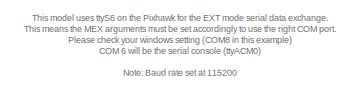
[diagram: root canvas - part 1/2, top left region]
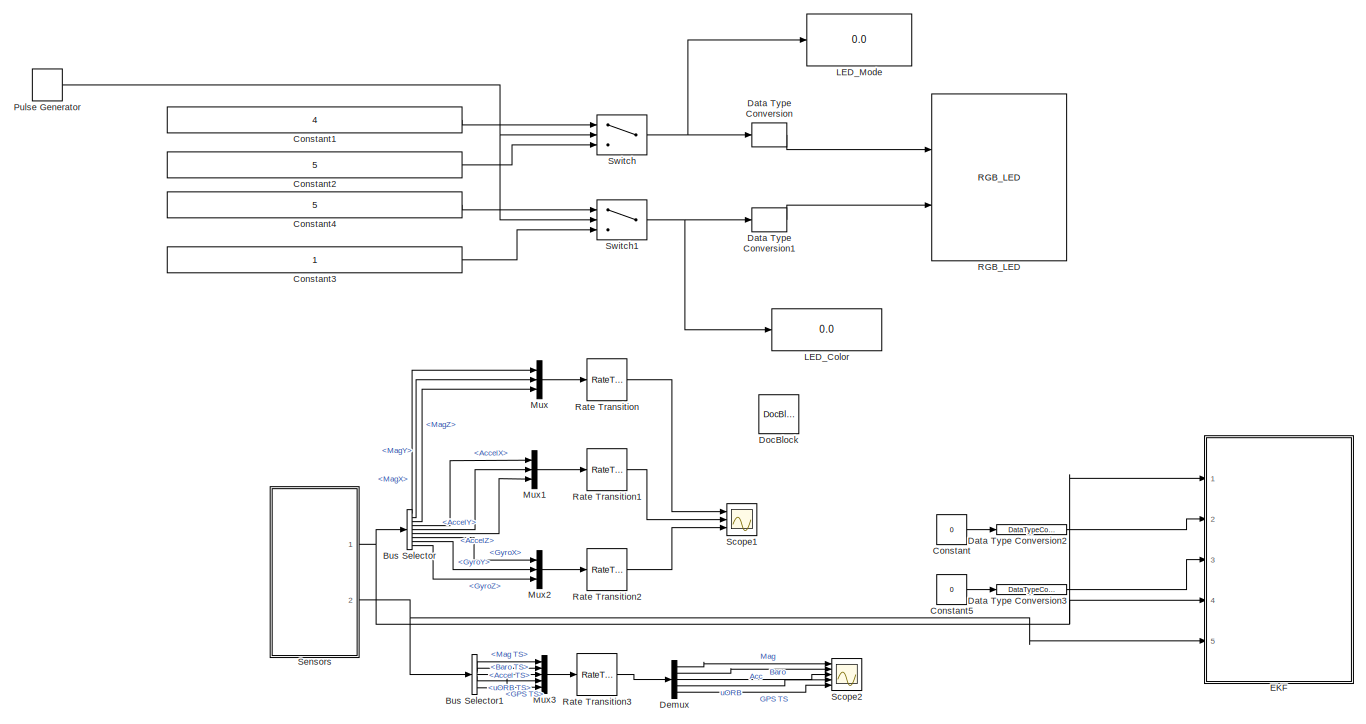
[diagram: root canvas - part 2/2, full width, middle band]
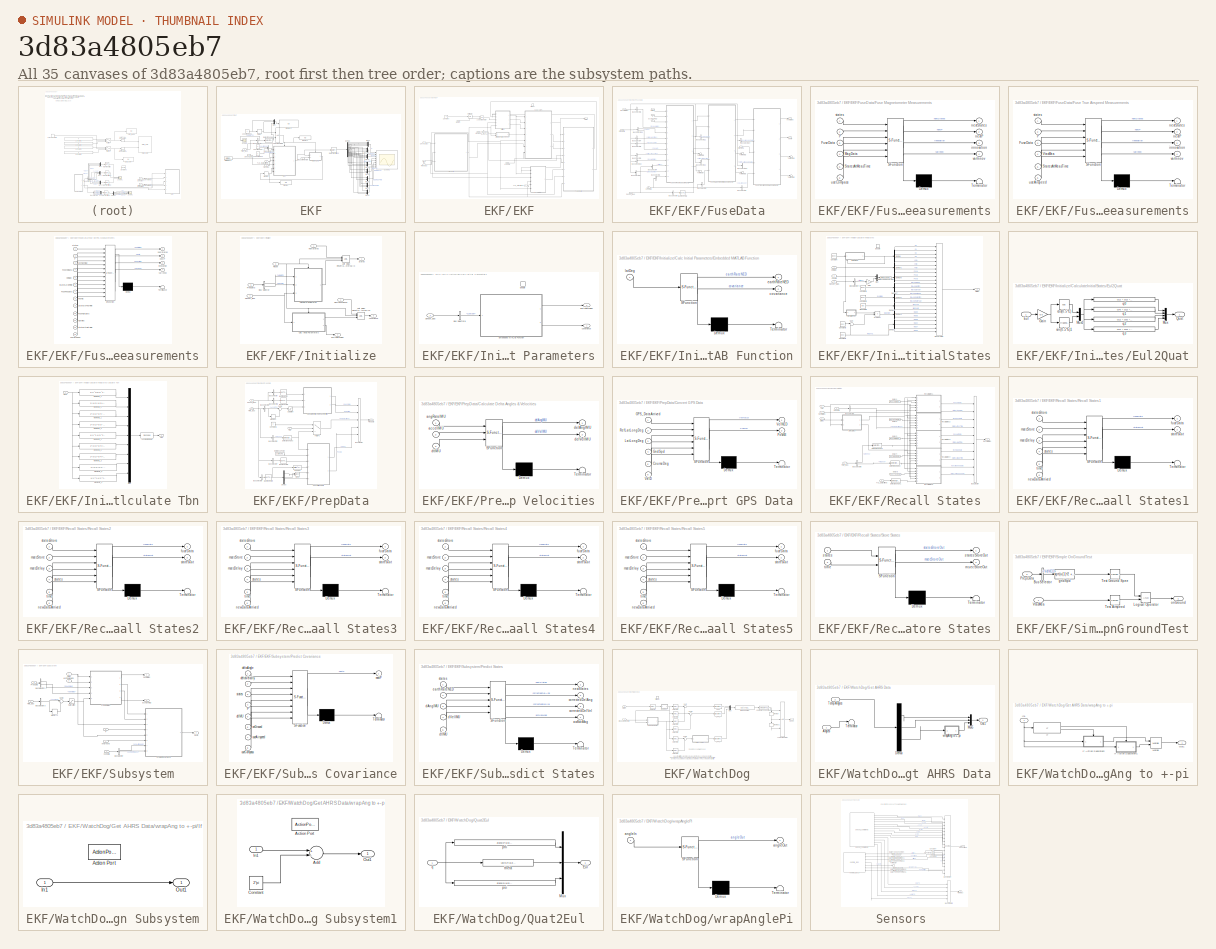
[diagram: thumbnail index - all 35 canvases of the model, root first then tree order]
MODEL slx_3d83a4805eb7
KIND model
CONFIG AbsTol = auto
CONFIG EnableMultiTasking = on
CONFIG FixedStep = 1/100
CONFIG InitFcn = GainTune = 1;\nalignTime = floor(398.001 * Ts);\nEAS2TAS = 1;\nLatDegInit = 1;\nLngDegInit = 1;\nmsecVelDelay = 300;\nmsecPosDelay = 300;\nmsecHgtDelay = 420;\nmsecMagDelay = 30;\nmsecTasDelay = 200;
CONFIG MaxStep = auto
CONFIG MinStep = auto
CONFIG RelTol = 1e-3
CONFIG SampleTimeConstraint = Unconstrained
CONFIG Solver = FixedStepDiscrete
CONFIG SolverName = FixedStepDiscrete
CONFIG StartTime = 0.0
CONFIG StopTime = inf
BLOCK [BusSelector] Bus Selector
  OutputAsBus = off
  OutputSignals = MagX,MagY,MagZ,AccelX,AccelY,AccelZ,GyroX,GyroY,GyroZ
  Ports = [1, 9]
BLOCK [BusSelector] Bus Selector1
  OutputAsBus = off
  OutputSignals = Mag TS,Accel TS,Baro TS,uORB TS,GPS TS
  Ports = [1, 5]
BLOCK [Constant] Constant
  SampleTime = -1
  Value = 0
BLOCK [Constant] Constant1
  OutDataTypeStr = int8
  Value = 4
BLOCK [Constant] Constant2
  OutDataTypeStr = int8
  Value = 5
BLOCK [Constant] Constant3
  OutDataTypeStr = int8
BLOCK [Constant] Constant4
  OutDataTypeStr = int8
  Value = 5
BLOCK [Constant] Constant5
  SampleTime = -1
  Value = 0
BLOCK [DataTypeConversion] Data Type Conversion
  OutDataTypeStr = Enum: RGBLED_MODE_ENUM
  RndMeth = Floor
  SaturateOnIntegerOverflow = off
BLOCK [DataTypeConversion] Data Type Conversion1
  OutDataTypeStr = Enum: RGBLED_COLOR_ENUM
  RndMeth = Floor
  SaturateOnIntegerOverflow = off
BLOCK [DataTypeConversion] Data Type Conversion2
  OutDataTypeStr = single
  RndMeth = Floor
  SaturateOnIntegerOverflow = off
BLOCK [DataTypeConversion] Data Type Conversion3
  OutDataTypeStr = single
  RndMeth = Floor
  SaturateOnIntegerOverflow = off
BLOCK [Demux] Demux
  DisplayOption = bar
  Outputs = 5
  Ports = [1, 5]
BLOCK [Reference] DocBlock  REF=simulink/Model-Wide
Utilities/DocBlock
  Ports = []
  SourceBlock = simulink/Model-Wide\nUtilities/DocBlock
  SourceProductBaseCode = SL
  SourceProductName = Simulink
  SourceType = DocBlock
  UserDataPersistent = on
BLOCK [SubSystem] EKF
  Ports = [5]
  RequestExecContextInheritance = off
  Variant = off
BLOCK [BusCreator] EKF/Bus Creator
  DisplayOption = bar
  InheritFromInputs = on
  Inputs = 2
  Ports = [2, 1]
BLOCK [BusSelector] EKF/Bus Selector
  OutputAsBus = off
  OutputSignals = uORB TS
  Ports = [1, 1]
BLOCK [Delay] EKF/Delay
  DelayLength = alignTime
  InitialCondition = 0
  InputPortMap = u0
  Ports = [1, 1]
BLOCK [Demux] EKF/Demux
  DisplayOption = bar
  Outputs = 24
  Ports = [1, 24]
BLOCK [Reference] EKF/Detect Change1  REF=simulink/Logic and Bit
Operations/Detect
Change
  Ports = [1, 1]
  SourceBlock = simulink/Logic and Bit\nOperations/Detect\nChange
  SourceProductBaseCode = SL
  SourceProductName = Simulink
  SourceType = Detect Change
BLOCK [DigitalClock] EKF/Digital Clock
  SampleTime = -1
BLOCK [Display] EKF/Display
  Decimation = 1
  Ports = [1]
BLOCK [Display] EKF/Display1
  Decimation = 1
  Ports = [1]
BLOCK [Display] EKF/Display2
  Decimation = 1
  Ports = [1]
BLOCK [SubSystem] EKF/EKF
  Ports = [7, 1, 0, 1]
  RequestExecContextInheritance = off
  Variant = off
BLOCK [Constant] EKF/EKF/Constant
  OutDataTypeStr = boolean
  SampleTime = -1
  Value = 0
BLOCK [Gain] EKF/EKF/EAS2TAS
  Gain = EAS2TAS
  OutDataTypeStr = Inherit: Inherit via internal rule
  ParamDataTypeStr = Inherit: Inherit via internal rule
  SaturateOnIntegerOverflow = off
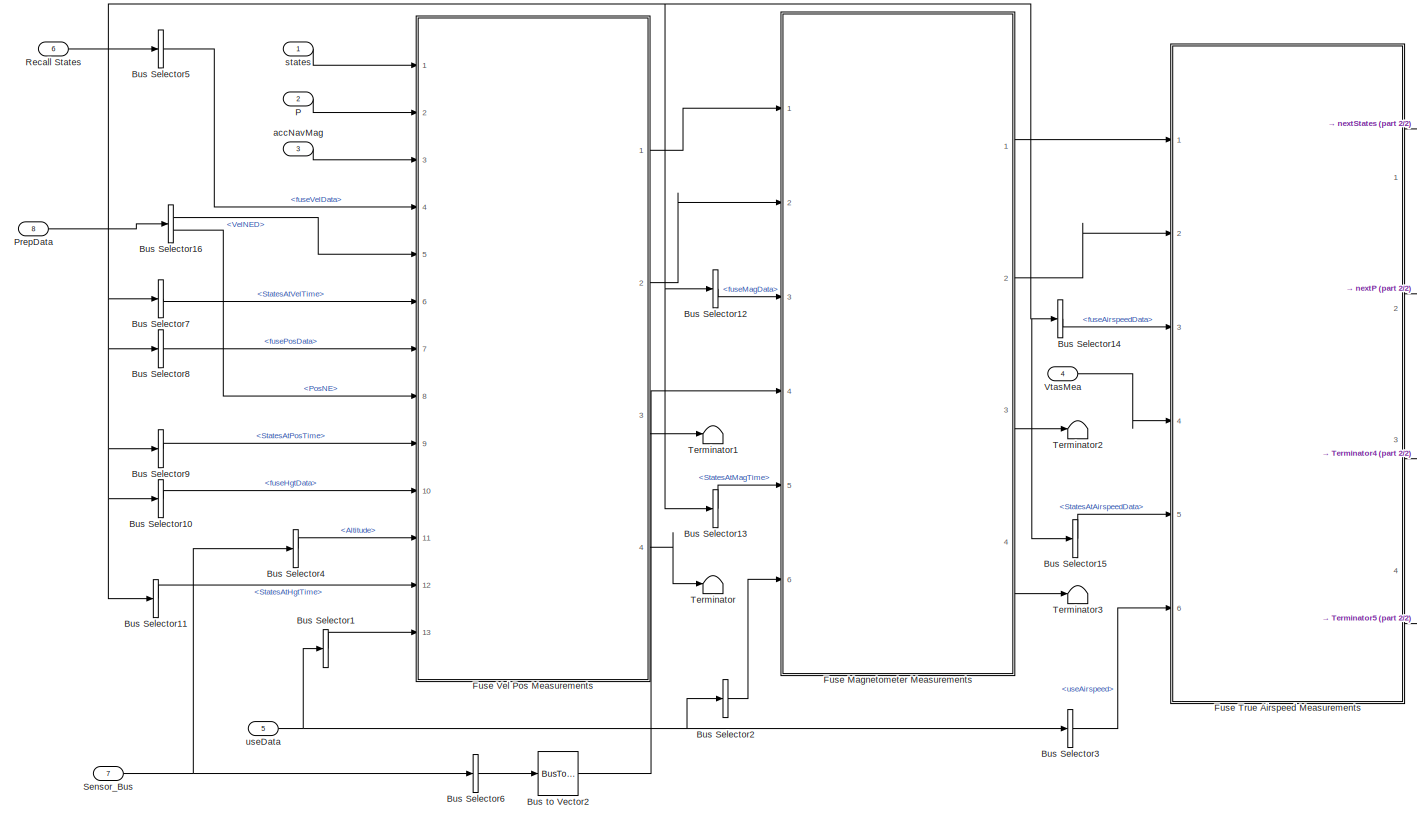
[diagram: EKF/EKF/FuseData - part 1/2, most of the canvas]
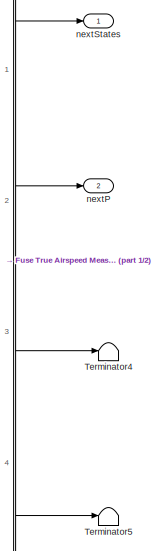
[diagram: EKF/EKF/FuseData - part 2/2, middle right region]
BLOCK [SubSystem] EKF/EKF/FuseData
  Ports = [8, 2]
  RequestExecContextInheritance = off
  Variant = off
BLOCK [BusSelector] EKF/EKF/FuseData/Bus Selector1
  OutputAsBus = on
  OutputSignals = useAirspeed
  Ports = [1, 1]
BLOCK [BusSelector] EKF/EKF/FuseData/Bus Selector10
  OutputAsBus = off
  OutputSignals = fuseHgtData
  Ports = [1, 1]
BLOCK [BusSelector] EKF/EKF/FuseData/Bus Selector11
  OutputAsBus = off
  OutputSignals = StatesAtHgtTime
  Ports = [1, 1]
BLOCK [BusSelector] EKF/EKF/FuseData/Bus Selector12
  OutputAsBus = off
  OutputSignals = fuseMagData
  Ports = [1, 1]
BLOCK [BusSelector] EKF/EKF/FuseData/Bus Selector13
  OutputAsBus = off
  OutputSignals = StatesAtMagTime
  Ports = [1, 1]
BLOCK [BusSelector] EKF/EKF/FuseData/Bus Selector14
  OutputAsBus = off
  OutputSignals = fuseAirspeedData
  Ports = [1, 1]
BLOCK [BusSelector] EKF/EKF/FuseData/Bus Selector15
  OutputAsBus = off
  OutputSignals = StatesAtAirspeedData
  Ports = [1, 1]
BLOCK [BusSelector] EKF/EKF/FuseData/Bus Selector16
  OutputAsBus = off
  OutputSignals = VelNED,PosNE
  Ports = [1, 2]
BLOCK [BusSelector] EKF/EKF/FuseData/Bus Selector2
  OutputAsBus = on
  OutputSignals = useCompass
  Ports = [1, 1]
BLOCK [BusSelector] EKF/EKF/FuseData/Bus Selector3
  OutputAsBus = off
  OutputSignals = useAirspeed
  Ports = [1, 1]
BLOCK [BusSelector] EKF/EKF/FuseData/Bus Selector4
  OutputAsBus = off
  OutputSignals = Altitude
  Ports = [1, 1]
BLOCK [BusSelector] EKF/EKF/FuseData/Bus Selector5
  OutputAsBus = off
  OutputSignals = fuseVelData
  Ports = [1, 1]
BLOCK [BusSelector] EKF/EKF/FuseData/Bus Selector6
  OutputAsBus = on
  OutputSignals = MagX,MagY,MagZ
  Ports = [1, 1]
BLOCK [BusSelector] EKF/EKF/FuseData/Bus Selector7
  OutputAsBus = off
  OutputSignals = StatesAtVelTime
  Ports = [1, 1]
BLOCK [BusSelector] EKF/EKF/FuseData/Bus Selector8
  OutputAsBus = off
  OutputSignals = fusePosData
  Ports = [1, 1]
BLOCK [BusSelector] EKF/EKF/FuseData/Bus Selector9
  OutputAsBus = off
  OutputSignals = StatesAtPosTime
  Ports = [1, 1]
BLOCK [BusToVector] EKF/EKF/FuseData/Bus to Vector2
BLOCK [SubSystem] EKF/EKF/FuseData/Fuse Magnetometer Measurements
  ErrorFcn = Stateflow.Translate.translate
  PermitHierarchicalResolution = ExplicitOnly
  Ports = [6, 4]
  RequestExecContextInheritance = off
  SFBlockType = MATLAB Function
  TreatAsAtomicUnit = on
  Variant = off
BLOCK [Demux] EKF/EKF/FuseData/Fuse Magnetometer Measurements/ Demux 
  Outputs = 1
  Ports = [1, 1]
BLOCK [S-Function] EKF/EKF/FuseData/Fuse Magnetometer Measurements/ SFunction 
  EnableBusSupport = on
  FunctionName = sf_sfun
  PortCounts = [6 5]
  Ports = [6, 5]
  SFcnIsStateOwnerBlock = off
  SFunctionDeploymentMode = off
  Tag = Stateflow S-Function ext_mode_intro 9
BLOCK [Terminator] EKF/EKF/FuseData/Fuse Magnetometer Measurements/ Terminator 
BLOCK [Inport] EKF/EKF/FuseData/Fuse Magnetometer Measurements/FuseData
  IconDisplay = Port number
  Port = 3
BLOCK [Inport] EKF/EKF/FuseData/Fuse Magnetometer Measurements/MagData
  IconDisplay = Port number
  Port = 4
BLOCK [Inport] EKF/EKF/FuseData/Fuse Magnetometer Measurements/P
  IconDisplay = Port number
  Port = 2
BLOCK [Inport] EKF/EKF/FuseData/Fuse Magnetometer Measurements/StatesAtMeasTime
  IconDisplay = Port number
  Port = 5
BLOCK [Outport] EKF/EKF/FuseData/Fuse Magnetometer Measurements/innovation
  IconDisplay = Port number
  Port = 3
BLOCK [Outport] EKF/EKF/FuseData/Fuse Magnetometer Measurements/nextP
  IconDisplay = Port number
  Port = 2
BLOCK [Outport] EKF/EKF/FuseData/Fuse Magnetometer Measurements/nextStates
  IconDisplay = Port number
BLOCK [Inport] EKF/EKF/FuseData/Fuse Magnetometer Measurements/states
  IconDisplay = Port number
BLOCK [Inport] EKF/EKF/FuseData/Fuse Magnetometer Measurements/useCompass
  IconDisplay = Port number
  Port = 6
BLOCK [Outport] EKF/EKF/FuseData/Fuse Magnetometer Measurements/varInnov
  IconDisplay = Port number
  Port = 4
BLOCK [SubSystem] EKF/EKF/FuseData/Fuse True Airspeed Measurements
  ErrorFcn = Stateflow.Translate.translate
  PermitHierarchicalResolution = ExplicitOnly
  Ports = [6, 4]
  RequestExecContextInheritance = off
  SFBlockType = MATLAB Function
  TreatAsAtomicUnit = on
  Variant = off
BLOCK [Demux] EKF/EKF/FuseData/Fuse True Airspeed Measurements/ Demux 
  Outputs = 1
  Ports = [1, 1]
BLOCK [S-Function] EKF/EKF/FuseData/Fuse True Airspeed Measurements/ SFunction 
  EnableBusSupport = on
  FunctionName = sf_sfun
  PortCounts = [6 5]
  Ports = [6, 5]
  SFcnIsStateOwnerBlock = off
  SFunctionDeploymentMode = off
  Tag = Stateflow S-Function ext_mode_intro 4
BLOCK [Terminator] EKF/EKF/FuseData/Fuse True Airspeed Measurements/ Terminator 
BLOCK [Inport] EKF/EKF/FuseData/Fuse True Airspeed Measurements/FuseData
  IconDisplay = Port number
  Port = 3
BLOCK [Inport] EKF/EKF/FuseData/Fuse True Airspeed Measurements/P
  IconDisplay = Port number
  Port = 2
BLOCK [Inport] EKF/EKF/FuseData/Fuse True Airspeed Measurements/StatesAtMeasTime
  IconDisplay = Port number
  Port = 5
BLOCK [Inport] EKF/EKF/FuseData/Fuse True Airspeed Measurements/VtasMea
  IconDisplay = Port number
  Port = 4
BLOCK [Outport] EKF/EKF/FuseData/Fuse True Airspeed Measurements/innovation
  IconDisplay = Port number
  Port = 3
BLOCK [Outport] EKF/EKF/FuseData/Fuse True Airspeed Measurements/nextP
  IconDisplay = Port number
  Port = 2
BLOCK [Outport] EKF/EKF/FuseData/Fuse True Airspeed Measurements/nextStates
  IconDisplay = Port number
BLOCK [Inport] EKF/EKF/FuseData/Fuse True Airspeed Measurements/states
  IconDisplay = Port number
BLOCK [Inport] EKF/EKF/FuseData/Fuse True Airspeed Measurements/useAirspeed
  IconDisplay = Port number
  Port = 6
BLOCK [Outport] EKF/EKF/FuseData/Fuse True Airspeed Measurements/varInnov
  IconDisplay = Port number
  Port = 4
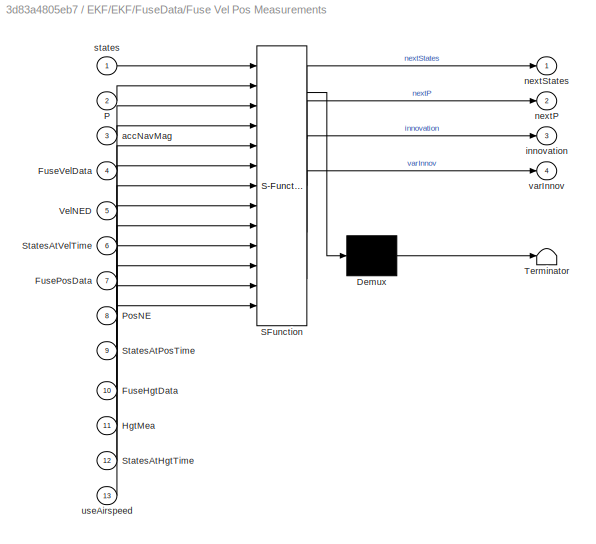
BLOCK [SubSystem] EKF/EKF/FuseData/Fuse Vel Pos Measurements
  ErrorFcn = Stateflow.Translate.translate
  PermitHierarchicalResolution = ExplicitOnly
  Ports = [13, 4]
  RequestExecContextInheritance = off
  SFBlockType = MATLAB Function
  TreatAsAtomicUnit = on
  Variant = off
BLOCK [Demux] EKF/EKF/FuseData/Fuse Vel Pos Measurements/ Demux 
  Outputs = 1
  Ports = [1, 1]
BLOCK [S-Function] EKF/EKF/FuseData/Fuse Vel Pos Measurements/ SFunction 
  EnableBusSupport = on
  FunctionName = sf_sfun
  PortCounts = [13 5]
  Ports = [13, 5]
  SFcnIsStateOwnerBlock = off
  SFunctionDeploymentMode = off
  Tag = Stateflow S-Function ext_mode_intro 19
BLOCK [Terminator] EKF/EKF/FuseData/Fuse Vel Pos Measurements/ Terminator 
BLOCK [Inport] EKF/EKF/FuseData/Fuse Vel Pos Measurements/FuseHgtData
  IconDisplay = Port number
  Port = 10
BLOCK [Inport] EKF/EKF/FuseData/Fuse Vel Pos Measurements/FusePosData
  IconDisplay = Port number
  Port = 7
BLOCK [Inport] EKF/EKF/FuseData/Fuse Vel Pos Measurements/FuseVelData
  IconDisplay = Port number
  Port = 4
BLOCK [Inport] EKF/EKF/FuseData/Fuse Vel Pos Measurements/HgtMea
  IconDisplay = Port number
  Port = 11
BLOCK [Inport] EKF/EKF/FuseData/Fuse Vel Pos Measurements/P
  IconDisplay = Port number
  Port = 2
BLOCK [Inport] EKF/EKF/FuseData/Fuse Vel Pos Measurements/PosNE
  IconDisplay = Port number
  Port = 8
BLOCK [Inport] EKF/EKF/FuseData/Fuse Vel Pos Measurements/StatesAtHgtTime
  IconDisplay = Port number
  Port = 12
BLOCK [Inport] EKF/EKF/FuseData/Fuse Vel Pos Measurements/StatesAtPosTime
  IconDisplay = Port number
  Port = 9
BLOCK [Inport] EKF/EKF/FuseData/Fuse Vel Pos Measurements/StatesAtVelTime
  IconDisplay = Port number
  Port = 6
BLOCK [Inport] EKF/EKF/FuseData/Fuse Vel Pos Measurements/VelNED
  IconDisplay = Port number
  Port = 5
BLOCK [Inport] EKF/EKF/FuseData/Fuse Vel Pos Measurements/accNavMag
  IconDisplay = Port number
  Port = 3
BLOCK [Outport] EKF/EKF/FuseData/Fuse Vel Pos Measurements/innovation
  IconDisplay = Port number
  Port = 3
BLOCK [Outport] EKF/EKF/FuseData/Fuse Vel Pos Measurements/nextP
  IconDisplay = Port number
  Port = 2
BLOCK [Outport] EKF/EKF/FuseData/Fuse Vel Pos Measurements/nextStates
  IconDisplay = Port number
BLOCK [Inport] EKF/EKF/FuseData/Fuse Vel Pos Measurements/states
  IconDisplay = Port number
BLOCK [Inport] EKF/EKF/FuseData/Fuse Vel Pos Measurements/useAirspeed
  IconDisplay = Port number
  Port = 13
BLOCK [Outport] EKF/EKF/FuseData/Fuse Vel Pos Measurements/varInnov
  IconDisplay = Port number
  Port = 4
BLOCK [Inport] EKF/EKF/FuseData/P
  IconDisplay = Port number
  Port = 2
BLOCK [Inport] EKF/EKF/FuseData/PrepData
  IconDisplay = Port number
  Port = 8
BLOCK [Inport] EKF/EKF/FuseData/Recall States
  IconDisplay = Port number
  Port = 6
BLOCK [Inport] EKF/EKF/FuseData/Sensor_Bus
  IconDisplay = Port number
  Port = 7
BLOCK [Terminator] EKF/EKF/FuseData/Terminator
BLOCK [Terminator] EKF/EKF/FuseData/Terminator1
BLOCK [Terminator] EKF/EKF/FuseData/Terminator2
BLOCK [Terminator] EKF/EKF/FuseData/Terminator3
BLOCK [Terminator] EKF/EKF/FuseData/Terminator4
BLOCK [Terminator] EKF/EKF/FuseData/Terminator5
BLOCK [Inport] EKF/EKF/FuseData/VtasMea
  IconDisplay = Port number
  Port = 4
BLOCK [Inport] EKF/EKF/FuseData/accNavMag
  IconDisplay = Port number
  Port = 3
BLOCK [Outport] EKF/EKF/FuseData/nextP
  IconDisplay = Port number
  Port = 2
BLOCK [Outport] EKF/EKF/FuseData/nextStates
  IconDisplay = Port number
BLOCK [Inport] EKF/EKF/FuseData/states
  IconDisplay = Port number
BLOCK [Inport] EKF/EKF/FuseData/useData
  IconDisplay = Port number
  Port = 5
BLOCK [SubSystem] EKF/EKF/Initialize
  Ports = [5, 3]
  RequestExecContextInheritance = off
  Variant = off
BLOCK [BusSelector] EKF/EKF/Initialize/Bus Selector
  OutputAsBus = off
  OutputSignals = VelNED,PosNE
  Ports = [1, 2]
BLOCK [SubSystem] EKF/EKF/Initialize/Calc Initial Parameters
  Ports = [1, 2, 1]
  RequestExecContextInheritance = off
  Variant = off
BLOCK [BusSelector] EKF/EKF/Initialize/Calc Initial Parameters/Bus Selector8
  OutputAsBus = off
  OutputSignals = Latitude
  Ports = [1, 1]
BLOCK [SubSystem] EKF/EKF/Initialize/Calc Initial Parameters/Embedded MATLAB Function
  ErrorFcn = Stateflow.Translate.translate
  PermitHierarchicalResolution = ExplicitOnly
  Ports = [1, 2]
  RequestExecContextInheritance = off
  SFBlockType = MATLAB Function
  TreatAsAtomicUnit = on
  Variant = off
BLOCK [Demux] EKF/EKF/Initialize/Calc Initial Parameters/Embedded MATLAB Function/ Demux 
  Outputs = 1
  Ports = [1, 1]
BLOCK [S-Function] EKF/EKF/Initialize/Calc Initial Parameters/Embedded MATLAB Function/ SFunction 
  EnableBusSupport = on
  FunctionName = sf_sfun
  PortCounts = [1 3]
  Ports = [1, 3]
  SFcnIsStateOwnerBlock = off
  SFunctionDeploymentMode = off
  Tag = Stateflow S-Function ext_mode_intro 2
BLOCK [Terminator] EKF/EKF/Initialize/Calc Initial Parameters/Embedded MATLAB Function/ Terminator 
BLOCK [Outport] EKF/EKF/Initialize/Calc Initial Parameters/Embedded MATLAB Function/covariance
  IconDisplay = Port number
  Port = 2
BLOCK [Outport] EKF/EKF/Initialize/Calc Initial Parameters/Embedded MATLAB Function/earthRateNED
  IconDisplay = Port number
BLOCK [Inport] EKF/EKF/Initialize/Calc Initial Parameters/Embedded MATLAB Function/latDeg
  IconDisplay = Port number
BLOCK [EnablePort] EKF/EKF/Initialize/Calc Initial Parameters/Enable
  Ports = []
BLOCK [Inport] EKF/EKF/Initialize/Calc Initial Parameters/Sensor_Bus
  IconDisplay = Port number
BLOCK [Outport] EKF/EKF/Initialize/Calc Initial Parameters/covariance
  IconDisplay = Port number
BLOCK [Outport] EKF/EKF/Initialize/Calc Initial Parameters/earthRateNED
  IconDisplay = Port number
  Port = 2
  PortDimensions = 3
BLOCK [SubSystem] EKF/EKF/Initialize/CalculateInitialStates
  Ports = [3, 1, 1]
  RequestExecContextInheritance = off
  TreatAsAtomicUnit = on
  Variant = off
BLOCK [BusCreator] EKF/EKF/Initialize/CalculateInitialStates/Bus Creator
  DisplayOption = bar
  InheritFromInputs = on
  Inputs = 24
  Ports = [24, 1]
BLOCK [BusSelector] EKF/EKF/Initialize/CalculateInitialStates/Bus Selector4
  OutputAsBus = off
  OutputSignals = Altitude
  Ports = [1, 1]
BLOCK [Constant] EKF/EKF/Initialize/CalculateInitialStates/Constant
  OutDataTypeStr = single
  SampleTime = -1
  Value = [0 0 0]
BLOCK [Constant] EKF/EKF/Initialize/CalculateInitialStates/Constant1
  OutDataTypeStr = single
  SampleTime = -1
  Value = [0 0 0]
BLOCK [Constant] EKF/EKF/Initialize/CalculateInitialStates/Constant2
  OutDataTypeStr = single
  SampleTime = -1
  Value = [0 0 0]
BLOCK [Constant] EKF/EKF/Initialize/CalculateInitialStates/Constant3
  OutDataTypeStr = single
  SampleTime = -1
  Value = [0 0 0]
BLOCK [Constant] EKF/EKF/Initialize/CalculateInitialStates/Constant4
  OutDataTypeStr = single
  SampleTime = -1
  Value = [0 0 0]
BLOCK [DataTypeConversion] EKF/EKF/Initialize/CalculateInitialStates/Data Type Conversion
  OutDataTypeStr = single
  RndMeth = Floor
  SaturateOnIntegerOverflow = off
BLOCK [Demux] EKF/EKF/Initialize/CalculateInitialStates/Demux
  DisplayOption = bar
  Ports = [1, 4]
BLOCK [Demux] EKF/EKF/Initialize/CalculateInitialStates/Demux1
  DisplayOption = bar
  Outputs = 3
  Ports = [1, 3]
BLOCK [Demux] EKF/EKF/Initialize/CalculateInitialStates/Demux2
  DisplayOption = bar
  Outputs = 3
  Ports = [1, 3]
BLOCK [Demux] EKF/EKF/Initialize/CalculateInitialStates/Demux3
  DisplayOption = bar
  Outputs = 3
  Ports = [1, 3]
BLOCK [Demux] EKF/EKF/Initialize/CalculateInitialStates/Demux4
  DisplayOption = bar
  Outputs = 2
  Ports = [1, 2]
BLOCK [Demux] EKF/EKF/Initialize/CalculateInitialStates/Demux5
  DisplayOption = bar
  Outputs = 3
  Ports = [1, 3]
BLOCK [Demux] EKF/EKF/Initialize/CalculateInitialStates/Demux6
  DisplayOption = bar
  Outputs = 3
  Ports = [1, 3]
BLOCK [Demux] EKF/EKF/Initialize/CalculateInitialStates/Demux7
  DisplayOption = bar
  Outputs = 3
  Ports = [1, 3]
BLOCK [EnablePort] EKF/EKF/Initialize/CalculateInitialStates/Enable
  Ports = []
BLOCK [SubSystem] EKF/EKF/Initialize/CalculateInitialStates/Eul2Quat
  Ports = [1, 1]
  RequestExecContextInheritance = off
  Variant = off
BLOCK [Inport] EKF/EKF/Initialize/CalculateInitialStates/Eul2Quat/Eul
  IconDisplay = Port number
BLOCK [Gain] EKF/EKF/Initialize/CalculateInitialStates/Eul2Quat/Gain
  Gain = 0.5
BLOCK [Mux] EKF/EKF/Initialize/CalculateInitialStates/Eul2Quat/Mux
  DisplayOption = bar
  Ports = [4, 1]
BLOCK [Mux] EKF/EKF/Initialize/CalculateInitialStates/Eul2Quat/Mux1
  DisplayOption = bar
  Inputs = [3 3]
  Ports = [2, 1]
BLOCK [Outport] EKF/EKF/Initialize/CalculateInitialStates/Eul2Quat/Quat
  IconDisplay = Port number
BLOCK [Trigonometry] EKF/EKF/Initialize/CalculateInitialStates/Eul2Quat/cos(0.5*E)
  Operator = cos
  Ports = [1, 1]
BLOCK [Fcn] EKF/EKF/Initialize/CalculateInitialStates/Eul2Quat/q0
  Expr = u[1] * u[2] * u[3] + u[4] * u[5] * u[6]
BLOCK [Fcn] EKF/EKF/Initialize/CalculateInitialStates/Eul2Quat/q1
  Expr = u[4] * u[2] * u[3] - u[1] * u[5] * u[6]
BLOCK [Fcn] EKF/EKF/Initialize/CalculateInitialStates/Eul2Quat/q2
  Expr = u[1] * u[5] * u[3] + u[4] * u[2] * u[6]
BLOCK [Fcn] EKF/EKF/Initialize/CalculateInitialStates/Eul2Quat/q3
  Expr = u[1] * u[2] * u[6] - u[4] * u[5] * u[3]
BLOCK [Trigonometry] EKF/EKF/Initialize/CalculateInitialStates/Eul2Quat/sin(0.5*E)1
  Ports = [1, 1]
BLOCK [Gain] EKF/EKF/Initialize/CalculateInitialStates/Gain
  Gain = -1
  OutDataTypeStr = Inherit: Inherit via internal rule
  ParamDataTypeStr = Inherit: Inherit via internal rule
  SaturateOnIntegerOverflow = off
BLOCK [Mux] EKF/EKF/Initialize/CalculateInitialStates/Mux
  DisplayOption = bar
  Inputs = 2
  Ports = [2, 1]
BLOCK [Inport] EKF/EKF/Initialize/CalculateInitialStates/PosNE
  IconDisplay = Port number
  Port = 2
BLOCK [Product] EKF/EKF/Initialize/CalculateInitialStates/Product
  InputSameDT = off
  Multiplication = Matrix(*)
  OutDataTypeStr = Inherit: Inherit via internal rule
  Ports = [2, 1]
  SaturateOnIntegerOverflow = off
BLOCK [Inport] EKF/EKF/Initialize/CalculateInitialStates/Sensor_Bus
  IconDisplay = Port number
  Port = 3
BLOCK [Outport] EKF/EKF/Initialize/CalculateInitialStates/States
  IconDisplay = Port number
BLOCK [Sum] EKF/EKF/Initialize/CalculateInitialStates/Sum
  IconShape = round
  InputSameDT = off
  Inputs = |+-
  OutDataTypeStr = Inherit: Inherit via internal rule
  Ports = [2, 1]
  SaturateOnIntegerOverflow = off
BLOCK [Inport] EKF/EKF/Initialize/CalculateInitialStates/VelNED
  IconDisplay = Port number
  OutDataTypeStr = single
BLOCK [SubSystem] EKF/EKF/Initialize/CalculateInitialStates/calculate Tbn
  Ports = [1, 1]
  RequestExecContextInheritance = off
  Variant = off
BLOCK [Reshape] EKF/EKF/Initialize/CalculateInitialStates/calculate Tbn/Asssign to Rows
  OutputDimensionality = Customize
  OutputDimensions = [3,3]
  Ports = [1, 1]
BLOCK [Mux] EKF/EKF/Initialize/CalculateInitialStates/calculate Tbn/Mux
  DisplayOption = bar
  Inputs = 9
  Ports = [9, 1]
BLOCK [Inport] EKF/EKF/Initialize/CalculateInitialStates/calculate Tbn/Quat
  IconDisplay = Port number
  PortDimensions = 4
BLOCK [Outport] EKF/EKF/Initialize/CalculateInitialStates/calculate Tbn/Tbn
  IconDisplay = Port number
BLOCK [Fcn] EKF/EKF/Initialize/CalculateInitialStates/calculate Tbn/element 1_1
  Expr = u(1)^2+u(2)^2-u(3)^2-u(4)^2
BLOCK [Fcn] EKF/EKF/Initialize/CalculateInitialStates/calculate Tbn/element 1_2
  Expr = 2*(u(2)*u(3)-u(1)*u(4))
BLOCK [Fcn] EKF/EKF/Initialize/CalculateInitialStates/calculate Tbn/element 1_3
  Expr = 2*(u(2)*u(4)+u(1)*u(3))
BLOCK [Fcn] EKF/EKF/Initialize/CalculateInitialStates/calculate Tbn/element 2_1
  Expr = 2*(u(2)*u(3)+u(1)*u(4))
BLOCK [Fcn] EKF/EKF/Initialize/CalculateInitialStates/calculate Tbn/element 2_2
  Expr = u(1)^2-u(2)^2+u(3)^2-u(4)^2
BLOCK [Fcn] EKF/EKF/Initialize/CalculateInitialStates/calculate Tbn/element 2_3
  Expr = 2*(u(3)*u(4)-u(1)*u(2))
BLOCK [Fcn] EKF/EKF/Initialize/CalculateInitialStates/calculate Tbn/element 3_1
  Expr = 2*(u(2)*u(4)-u(1)*u(3))
BLOCK [Fcn] EKF/EKF/Initialize/CalculateInitialStates/calculate Tbn/element 3_2
  Expr = 2*(u(3)*u(4)+u(1)*u(2))
BLOCK [Fcn] EKF/EKF/Initialize/CalculateInitialStates/calculate Tbn/element 3_3
  Expr = u(1)^2-u(2)^2-u(3)^2+u(4)^2
BLOCK [Constant] EKF/EKF/Initialize/CalculateInitialStates/windVelNE
  OutDataTypeStr = single
  SampleTime = -1
  Value = [0 0]
BLOCK [Inport] EKF/EKF/Initialize/NextCovariance
  IconDisplay = Port number
  Port = 2
BLOCK [Inport] EKF/EKF/Initialize/NextStates
  IconDisplay = Port number
BLOCK [Inport] EKF/EKF/Initialize/PrepData
  IconDisplay = Port number
  Port = 5
BLOCK [Inport] EKF/EKF/Initialize/Reset
  IconDisplay = Port number
  Port = 3
BLOCK [Inport] EKF/EKF/Initialize/Sensor_Bus
  IconDisplay = Port number
  Port = 4
BLOCK [Outport] EKF/EKF/Initialize/States
  IconDisplay = Port number
BLOCK [Reference] EKF/EKF/Initialize/Unit Delay Resettable External IC  REF=simulink_need_slupdate/Unit Delay
Resettable
External IC
  Ports = [3, 1]
  SourceBlock = simulink_need_slupdate/Unit Delay\nResettable\nExternal IC
  SourceProductBaseCode = SL
  SourceProductName = Simulink
  SourceType = Unit Delay Resettable External Initial Condition
BLOCK [Reference] EKF/EKF/Initialize/Unit Delay Resettable External IC1  REF=simulink_need_slupdate/Unit Delay
Resettable
External IC
  Ports = [3, 1]
  SourceBlock = simulink_need_slupdate/Unit Delay\nResettable\nExternal IC
  SourceProductBaseCode = SL
  SourceProductName = Simulink
  SourceType = Unit Delay Resettable External Initial Condition
BLOCK [Outport] EKF/EKF/Initialize/covariance
  IconDisplay = Port number
  Port = 3
BLOCK [Outport] EKF/EKF/Initialize/earthRateNED
  IconDisplay = Port number
  Port = 2
BLOCK [Logic] EKF/EKF/Logical Operator
  AllPortsSameDT = off
  Operator = OR
  OutDataTypeStr = boolean
  Ports = [2, 1]
BLOCK [SubSystem] EKF/EKF/PrepData
  Ports = [3, 1]
  RequestExecContextInheritance = off
  Variant = off
BLOCK [Trigonometry] EKF/EKF/PrepData/Atan2
  Operator = atan2
  Ports = [2, 1]
BLOCK [BusCreator] EKF/EKF/PrepData/Bus Creator
  DisplayOption = bar
  InheritFromInputs = on
  Inputs = 5
  Ports = [5, 1]
BLOCK [BusSelector] EKF/EKF/PrepData/Bus Selector
  OutputAsBus = on
  OutputSignals = GyroX,GyroY,GyroZ
  Ports = [1, 1]
BLOCK [BusSelector] EKF/EKF/PrepData/Bus Selector1
  OutputAsBus = on
  OutputSignals = AccelX,AccelY,AccelZ
  Ports = [1, 1]
BLOCK [BusSelector] EKF/EKF/PrepData/Bus Selector2
  OutputAsBus = off
  OutputSignals = GPS TS
  Ports = [1, 1]
BLOCK [BusSelector] EKF/EKF/PrepData/Bus Selector3
  OutputAsBus = off
  OutputSignals = Accel TS
  Ports = [1, 1]
BLOCK [BusSelector] EKF/EKF/PrepData/Bus Selector7
  OutputAsBus = on
  OutputSignals = Latitude,Longitude
  Ports = [1, 1]
BLOCK [BusSelector] EKF/EKF/PrepData/Bus Selector9
  OutputAsBus = on
  OutputSignals = Vx,Vy,Vz
  Ports = [1, 1]
BLOCK [BusToVector] EKF/EKF/PrepData/Bus to Vector
BLOCK [BusToVector] EKF/EKF/PrepData/Bus to Vector1
BLOCK [BusToVector] EKF/EKF/PrepData/Bus to Vector3
BLOCK [BusToVector] EKF/EKF/PrepData/Bus to Vector4
BLOCK [SubSystem] EKF/EKF/PrepData/Calculate Delta Angles & Velocities
  ErrorFcn = Stateflow.Translate.translate
  PermitHierarchicalResolution = ExplicitOnly
  Ports = [3, 2]
  RequestExecContextInheritance = off
  SFBlockType = MATLAB Function
  TreatAsAtomicUnit = on
  Variant = off
BLOCK [Demux] EKF/EKF/PrepData/Calculate Delta Angles & Velocities/ Demux 
  Outputs = 1
  Ports = [1, 1]
BLOCK [S-Function] EKF/EKF/PrepData/Calculate Delta Angles & Velocities/ SFunction 
  EnableBusSupport = on
  FunctionName = sf_sfun
  PortCounts = [3 3]
  Ports = [3, 3]
  SFcnIsStateOwnerBlock = off
  SFunctionDeploymentMode = off
  Tag = Stateflow S-Function ext_mode_intro 11
BLOCK [Terminator] EKF/EKF/PrepData/Calculate Delta Angles & Velocities/ Terminator 
BLOCK [Inport] EKF/EKF/PrepData/Calculate Delta Angles & Velocities/accelIMU
  IconDisplay = Port number
  Port = 2
BLOCK [Inport] EKF/EKF/PrepData/Calculate Delta Angles & Velocities/angRateIMU
  IconDisplay = Port number
BLOCK [Outport] EKF/EKF/PrepData/Calculate Delta Angles & Velocities/delAngIMU
  IconDisplay = Port number
BLOCK [Outport] EKF/EKF/PrepData/Calculate Delta Angles & Velocities/delVelIMU
  IconDisplay = Port number
  Port = 2
BLOCK [Inport] EKF/EKF/PrepData/Calculate Delta Angles & Velocities/dtIMU
  IconDisplay = Port number
  Port = 3
BLOCK [Constant] EKF/EKF/PrepData/Constant1
  OutDataTypeStr = boolean
  Value = 0
BLOCK [SubSystem] EKF/EKF/PrepData/Convert GPS Data
  ErrorFcn = Stateflow.Translate.translate
  PermitHierarchicalResolution = ExplicitOnly
  Ports = [6, 2]
  RequestExecContextInheritance = off
  SFBlockType = MATLAB Function
  TreatAsAtomicUnit = on
  Variant = off
BLOCK [Demux] EKF/EKF/PrepData/Convert GPS Data/ Demux 
  Outputs = 1
  Ports = [1, 1]
BLOCK [S-Function] EKF/EKF/PrepData/Convert GPS Data/ SFunction 
  EnableBusSupport = on
  FunctionName = sf_sfun
  PortCounts = [6 3]
  Ports = [6, 3]
  SFcnIsStateOwnerBlock = off
  SFunctionDeploymentMode = off
  Tag = Stateflow S-Function ext_mode_intro 14
BLOCK [Terminator] EKF/EKF/PrepData/Convert GPS Data/ Terminator 
BLOCK [Inport] EKF/EKF/PrepData/Convert GPS Data/CourseDeg
  IconDisplay = Port number
  Port = 5
BLOCK [Inport] EKF/EKF/PrepData/Convert GPS Data/GPS_DataArrived
  IconDisplay = Port number
BLOCK [Inport] EKF/EKF/PrepData/Convert GPS Data/GndSpd
  IconDisplay = Port number
  Port = 4
BLOCK [Inport] EKF/EKF/PrepData/Convert GPS Data/LatLongDeg
  IconDisplay = Port number
  Port = 3
BLOCK [Outport] EKF/EKF/PrepData/Convert GPS Data/PosNE
  IconDisplay = Port number
  Port = 2
BLOCK [Inport] EKF/EKF/PrepData/Convert GPS Data/RefLatLongDeg
  IconDisplay = Port number
  Port = 2
BLOCK [Inport] EKF/EKF/PrepData/Convert GPS Data/VelD
  IconDisplay = Port number
  Port = 6
BLOCK [Outport] EKF/EKF/PrepData/Convert GPS Data/VelNED
  IconDisplay = Port number
BLOCK [Demux] EKF/EKF/PrepData/Demux
  DisplayOption = bar
  Outputs = 3
  Ports = [1, 3]
BLOCK [Reference] EKF/EKF/PrepData/Detect Change3  REF=simulink/Logic and Bit
Operations/Detect
Change
  Ports = [1, 1]
  SourceBlock = simulink/Logic and Bit\nOperations/Detect\nChange
  SourceProductBaseCode = SL
  SourceProductName = Simulink
  SourceType = Detect Change
BLOCK [Switch] EKF/EKF/PrepData/Fail GPS
  InputSameDT = off
  SaturateOnIntegerOverflow = off
  Threshold = 1e6
BLOCK [Memory] EKF/EKF/PrepData/Memory2
  InheritSampleTime = on
BLOCK [Outport] EKF/EKF/PrepData/PrepData
  IconDisplay = Port number
BLOCK [Constant] EKF/EKF/PrepData/Reference Point
  OutDataTypeStr = single
  Value = [LatDegInit, LngDegInit]
BLOCK [Saturate] EKF/EKF/PrepData/Saturation
  InputPortMap = u0
  LowerLimit = 0
  Ports = [1, 1]
  UpperLimit = 0.04
BLOCK [Inport] EKF/EKF/PrepData/Sensor_Bus
  IconDisplay = Port number
BLOCK [Sum] EKF/EKF/PrepData/Sum2
  AccumDataTypeStr = single
  IconShape = round
  InputSameDT = off
  Inputs = |+-
  OutDataTypeStr = Inherit: Inherit via internal rule
  Ports = [2, 1]
  SaturateOnIntegerOverflow = off
BLOCK [Inport] EKF/EKF/PrepData/Time
  IconDisplay = Port number
  Port = 2
BLOCK [Inport] EKF/EKF/PrepData/Time_Bus
  IconDisplay = Port number
  Port = 3
BLOCK [Fcn] EKF/EKF/PrepData/gndSpd
  Expr = sqrt(u(1)^2 + u(2)^2)
BLOCK [SubSystem] EKF/EKF/Recall States
  Ports = [6, 1]
  RequestExecContextInheritance = off
  Variant = off
BLOCK [BusCreator] EKF/EKF/Recall States/Bus Creator
  DisplayOption = bar
  InheritFromInputs = on
  Inputs = 10
  Ports = [10, 1]
BLOCK [BusSelector] EKF/EKF/Recall States/Bus Selector1
  OutputAsBus = off
  OutputSignals = NewDataArrived
  Ports = [1, 1]
BLOCK [BusSelector] EKF/EKF/Recall States/Bus Selector5
  OutputAsBus = off
  OutputSignals = GPS TS,Mag TS
  Ports = [1, 2]
BLOCK [Reference] EKF/EKF/Recall States/Detect Change1  REF=simulink/Logic and Bit
Operations/Detect
Change
  Ports = [1, 1]
  SourceBlock = simulink/Logic and Bit\nOperations/Detect\nChange
  SourceProductBaseCode = SL
  SourceProductName = Simulink
  SourceType = Detect Change
BLOCK [Reference] EKF/EKF/Recall States/Detect Change2  REF=simulink/Logic and Bit
Operations/Detect
Change
  Ports = [1, 1]
  SourceBlock = simulink/Logic and Bit\nOperations/Detect\nChange
  SourceProductBaseCode = SL
  SourceProductName = Simulink
  SourceType = Detect Change
BLOCK [Reference] EKF/EKF/Recall States/Detect Change3  REF=simulink/Logic and Bit
Operations/Detect
Change
  Ports = [1, 1]
  SourceBlock = simulink/Logic and Bit\nOperations/Detect\nChange
  SourceProductBaseCode = SL
  SourceProductName = Simulink
  SourceType = Detect Change
BLOCK [Inport] EKF/EKF/Recall States/NextStates
  IconDisplay = Port number
BLOCK [Inport] EKF/EKF/Recall States/PrepData
  IconDisplay = Port number
  Port = 5
BLOCK [Outport] EKF/EKF/Recall States/Recall States
  IconDisplay = Port number
BLOCK [SubSystem] EKF/EKF/Recall States/Recall States1
  ErrorFcn = Stateflow.Translate.translate
  PermitHierarchicalResolution = ExplicitOnly
  Ports = [6, 2]
  RequestExecContextInheritance = off
  SFBlockType = MATLAB Function
  TreatAsAtomicUnit = on
  Variant = off
BLOCK [Demux] EKF/EKF/Recall States/Recall States1/ Demux 
  Outputs = 1
  Ports = [1, 1]
BLOCK [S-Function] EKF/EKF/Recall States/Recall States1/ SFunction 
  EnableBusSupport = on
  FunctionName = sf_sfun
  PortCounts = [6 3]
  Ports = [6, 3]
  SFcnIsStateOwnerBlock = off
  SFunctionDeploymentMode = off
  Tag = Stateflow S-Function ext_mode_intro 16
BLOCK [Terminator] EKF/EKF/Recall States/Recall States1/ Terminator 
BLOCK [Outport] EKF/EKF/Recall States/Recall States1/fuseData
  IconDisplay = Port number
BLOCK [Inport] EKF/EKF/Recall States/Recall States1/msecDelay
  IconDisplay = Port number
  Port = 3
BLOCK [Inport] EKF/EKF/Recall States/Recall States1/msecStore
  IconDisplay = Port number
  Port = 2
BLOCK [Inport] EKF/EKF/Recall States/Recall States1/newDataArrived
  IconDisplay = Port number
  Port = 6
BLOCK [Inport] EKF/EKF/Recall States/Recall States1/states
  IconDisplay = Port number
  Port = 4
BLOCK [Outport] EKF/EKF/Recall States/Recall States1/statesOut
  IconDisplay = Port number
  Port = 2
BLOCK [Inport] EKF/EKF/Recall States/Recall States1/statesStore
  IconDisplay = Port number
BLOCK [Inport] EKF/EKF/Recall States/Recall States1/time
  IconDisplay = Port number
  Port = 5
BLOCK [SubSystem] EKF/EKF/Recall States/Recall States2
  ErrorFcn = Stateflow.Translate.translate
  PermitHierarchicalResolution = ExplicitOnly
  Ports = [6, 2]
  RequestExecContextInheritance = off
  SFBlockType = MATLAB Function
  TreatAsAtomicUnit = on
  Variant = off
BLOCK [Demux] EKF/EKF/Recall States/Recall States2/ Demux 
  Outputs = 1
  Ports = [1, 1]
BLOCK [S-Function] EKF/EKF/Recall States/Recall States2/ SFunction 
  EnableBusSupport = on
  FunctionName = sf_sfun
  PortCounts = [6 3]
  Ports = [6, 3]
  SFcnIsStateOwnerBlock = off
  SFunctionDeploymentMode = off
  Tag = Stateflow S-Function ext_mode_intro 5
BLOCK [Terminator] EKF/EKF/Recall States/Recall States2/ Terminator 
BLOCK [Outport] EKF/EKF/Recall States/Recall States2/fuseData
  IconDisplay = Port number
BLOCK [Inport] EKF/EKF/Recall States/Recall States2/msecDelay
  IconDisplay = Port number
  Port = 3
BLOCK [Inport] EKF/EKF/Recall States/Recall States2/msecStore
  IconDisplay = Port number
  Port = 2
BLOCK [Inport] EKF/EKF/Recall States/Recall States2/newDataArrived
  IconDisplay = Port number
  Port = 6
BLOCK [Inport] EKF/EKF/Recall States/Recall States2/states
  IconDisplay = Port number
  Port = 4
BLOCK [Outport] EKF/EKF/Recall States/Recall States2/statesOut
  IconDisplay = Port number
  Port = 2
BLOCK [Inport] EKF/EKF/Recall States/Recall States2/statesStore
  IconDisplay = Port number
BLOCK [Inport] EKF/EKF/Recall States/Recall States2/time
  IconDisplay = Port number
  Port = 5
BLOCK [SubSystem] EKF/EKF/Recall States/Recall States3
  ErrorFcn = Stateflow.Translate.translate
  PermitHierarchicalResolution = ExplicitOnly
  Ports = [6, 2]
  RequestExecContextInheritance = off
  SFBlockType = MATLAB Function
  TreatAsAtomicUnit = on
  Variant = off
BLOCK [Demux] EKF/EKF/Recall States/Recall States3/ Demux 
  Outputs = 1
  Ports = [1, 1]
BLOCK [S-Function] EKF/EKF/Recall States/Recall States3/ SFunction 
  EnableBusSupport = on
  FunctionName = sf_sfun
  PortCounts = [6 3]
  Ports = [6, 3]
  SFcnIsStateOwnerBlock = off
  SFunctionDeploymentMode = off
  Tag = Stateflow S-Function ext_mode_intro 7
BLOCK [Terminator] EKF/EKF/Recall States/Recall States3/ Terminator 
BLOCK [Outport] EKF/EKF/Recall States/Recall States3/fuseData
  IconDisplay = Port number
BLOCK [Inport] EKF/EKF/Recall States/Recall States3/msecDelay
  IconDisplay = Port number
  Port = 3
BLOCK [Inport] EKF/EKF/Recall States/Recall States3/msecStore
  IconDisplay = Port number
  Port = 2
BLOCK [Inport] EKF/EKF/Recall States/Recall States3/newDataArrived
  IconDisplay = Port number
  Port = 6
BLOCK [Inport] EKF/EKF/Recall States/Recall States3/states
  IconDisplay = Port number
  Port = 4
BLOCK [Outport] EKF/EKF/Recall States/Recall States3/statesOut
  IconDisplay = Port number
  Port = 2
BLOCK [Inport] EKF/EKF/Recall States/Recall States3/statesStore
  IconDisplay = Port number
BLOCK [Inport] EKF/EKF/Recall States/Recall States3/time
  IconDisplay = Port number
  Port = 5
BLOCK [SubSystem] EKF/EKF/Recall States/Recall States4
  ErrorFcn = Stateflow.Translate.translate
  PermitHierarchicalResolution = ExplicitOnly
  Ports = [6, 2]
  RequestExecContextInheritance = off
  SFBlockType = MATLAB Function
  TreatAsAtomicUnit = on
  Variant = off
BLOCK [Demux] EKF/EKF/Recall States/Recall States4/ Demux 
  Outputs = 1
  Ports = [1, 1]
BLOCK [S-Function] EKF/EKF/Recall States/Recall States4/ SFunction 
  EnableBusSupport = on
  FunctionName = sf_sfun
  PortCounts = [6 3]
  Ports = [6, 3]
  SFcnIsStateOwnerBlock = off
  SFunctionDeploymentMode = off
  Tag = Stateflow S-Function ext_mode_intro 8
BLOCK [Terminator] EKF/EKF/Recall States/Recall States4/ Terminator 
BLOCK [Outport] EKF/EKF/Recall States/Recall States4/fuseData
  IconDisplay = Port number
BLOCK [Inport] EKF/EKF/Recall States/Recall States4/msecDelay
  IconDisplay = Port number
  Port = 3
BLOCK [Inport] EKF/EKF/Recall States/Recall States4/msecStore
  IconDisplay = Port number
  Port = 2
BLOCK [Inport] EKF/EKF/Recall States/Recall States4/newDataArrived
  IconDisplay = Port number
  Port = 6
BLOCK [Inport] EKF/EKF/Recall States/Recall States4/states
  IconDisplay = Port number
  Port = 4
BLOCK [Outport] EKF/EKF/Recall States/Recall States4/statesOut
  IconDisplay = Port number
  Port = 2
BLOCK [Inport] EKF/EKF/Recall States/Recall States4/statesStore
  IconDisplay = Port number
BLOCK [Inport] EKF/EKF/Recall States/Recall States4/time
  IconDisplay = Port number
  Port = 5
BLOCK [SubSystem] EKF/EKF/Recall States/Recall States5
  ErrorFcn = Stateflow.Translate.translate
  PermitHierarchicalResolution = ExplicitOnly
  Ports = [6, 2]
  RequestExecContextInheritance = off
  SFBlockType = MATLAB Function
  TreatAsAtomicUnit = on
  Variant = off
BLOCK [Demux] EKF/EKF/Recall States/Recall States5/ Demux 
  Outputs = 1
  Ports = [1, 1]
BLOCK [S-Function] EKF/EKF/Recall States/Recall States5/ SFunction 
  EnableBusSupport = on
  FunctionName = sf_sfun
  PortCounts = [6 3]
  Ports = [6, 3]
  SFcnIsStateOwnerBlock = off
  SFunctionDeploymentMode = off
  Tag = Stateflow S-Function ext_mode_intro 12
BLOCK [Terminator] EKF/EKF/Recall States/Recall States5/ Terminator 
BLOCK [Outport] EKF/EKF/Recall States/Recall States5/fuseData
  IconDisplay = Port number
BLOCK [Inport] EKF/EKF/Recall States/Recall States5/msecDelay
  IconDisplay = Port number
  Port = 3
BLOCK [Inport] EKF/EKF/Recall States/Recall States5/msecStore
  IconDisplay = Port number
  Port = 2
BLOCK [Inport] EKF/EKF/Recall States/Recall States5/newDataArrived
  IconDisplay = Port number
  Port = 6
BLOCK [Inport] EKF/EKF/Recall States/Recall States5/states
  IconDisplay = Port number
  Port = 4
BLOCK [Outport] EKF/EKF/Recall States/Recall States5/statesOut
  IconDisplay = Port number
  Port = 2
BLOCK [Inport] EKF/EKF/Recall States/Recall States5/statesStore
  IconDisplay = Port number
BLOCK [Inport] EKF/EKF/Recall States/Recall States5/time
  IconDisplay = Port number
  Port = 5
BLOCK [Inport] EKF/EKF/Recall States/States
  IconDisplay = Port number
  Port = 2
BLOCK [SubSystem] EKF/EKF/Recall States/Store States
  ErrorFcn = Stateflow.Translate.translate
  PermitHierarchicalResolution = ExplicitOnly
  Ports = [2, 2]
  RequestExecContextInheritance = off
  SFBlockType = MATLAB Function
  TreatAsAtomicUnit = on
  Variant = off
BLOCK [Demux] EKF/EKF/Recall States/Store States/ Demux 
  Outputs = 1
  Ports = [1, 1]
BLOCK [S-Function] EKF/EKF/Recall States/Store States/ SFunction 
  EnableBusSupport = on
  FunctionName = sf_sfun
  PortCounts = [2 3]
  Ports = [2, 3]
  SFcnIsStateOwnerBlock = off
  SFunctionDeploymentMode = off
  Tag = Stateflow S-Function ext_mode_intro 6
BLOCK [Terminator] EKF/EKF/Recall States/Store States/ Terminator 
BLOCK [Outport] EKF/EKF/Recall States/Store States/msecStoreOut
  IconDisplay = Port number
  Port = 2
BLOCK [Inport] EKF/EKF/Recall States/Store States/states
  IconDisplay = Port number
BLOCK [Outport] EKF/EKF/Recall States/Store States/statesStoreOut
  IconDisplay = Port number
BLOCK [Inport] EKF/EKF/Recall States/Store States/time
  IconDisplay = Port number
  Port = 2
BLOCK [Inport] EKF/EKF/Recall States/TAS_DataArrived
  IconDisplay = Port number
  Port = 4
BLOCK [Inport] EKF/EKF/Recall States/Time
  IconDisplay = Port number
  Port = 3
BLOCK [Inport] EKF/EKF/Recall States/Time_Bus
  IconDisplay = Port number
  Port = 6
BLOCK [Constant] EKF/EKF/Recall States/delay1
  OutDataTypeStr = int32
  SampleTime = -1
  Value = msecVelDelay
BLOCK [Constant] EKF/EKF/Recall States/delay2
  OutDataTypeStr = int32
  SampleTime = -1
  Value = msecPosDelay
BLOCK [Constant] EKF/EKF/Recall States/delay3
  OutDataTypeStr = int32
  SampleTime = -1
  Value = msecHgtDelay
BLOCK [Constant] EKF/EKF/Recall States/delay4
  OutDataTypeStr = int32
  SampleTime = -1
  Value = msecMagDelay
BLOCK [Constant] EKF/EKF/Recall States/delay5
  OutDataTypeStr = int32
  SampleTime = -1
  Value = msecTasDelay
BLOCK [Inport] EKF/EKF/Reset
  IconDisplay = Port number
  OutDataTypeStr = boolean
  Port = 6
  PortDimensions = 1
BLOCK [Inport] EKF/EKF/Sensor_Bus
  IconDisplay = Port number
  Port = 5
BLOCK [SubSystem] EKF/EKF/Simple OnGroundTest
  Ports = [2, 1]
  RequestExecContextInheritance = off
  TreatAsAtomicUnit = on
  Variant = off
BLOCK [BusSelector] EKF/EKF/Simple OnGroundTest/Bus Selector
  OutputAsBus = off
  OutputSignals = VelNED
  Ports = [1, 1]
BLOCK [Logic] EKF/EKF/Simple OnGroundTest/Logical Operator
  AllPortsSameDT = off
  OutDataTypeStr = boolean
  Ports = [2, 1]
BLOCK [Inport] EKF/EKF/Simple OnGroundTest/PrepData
  IconDisplay = Port number
  Port = 2
BLOCK [Reference] EKF/EKF/Simple OnGroundTest/Test Airspeed  REF=simulink/Logic and Bit
Operations/Compare
To Constant
  Ports = [1, 1]
  SourceBlock = simulink/Logic and Bit\nOperations/Compare\nTo Constant
  SourceProductBaseCode = SL
  SourceProductName = Simulink
  SourceType = Compare To Constant
BLOCK [Reference] EKF/EKF/Simple OnGroundTest/Test Ground Spee  REF=simulink/Logic and Bit
Operations/Compare
To Constant
  Ports = [1, 1]
  SourceBlock = simulink/Logic and Bit\nOperations/Compare\nTo Constant
  SourceProductBaseCode = SL
  SourceProductName = Simulink
  SourceType = Compare To Constant
BLOCK [Inport] EKF/EKF/Simple OnGroundTest/VtasMea
  IconDisplay = Port number
BLOCK [Fcn] EKF/EKF/Simple OnGroundTest/gndSpd
  Expr = sqrt(u(1)^2 + u(2)^2)
BLOCK [Outport] EKF/EKF/Simple OnGroundTest/onGround
  IconDisplay = Port number
BLOCK [Outport] EKF/EKF/States
  IconDisplay = Port number
  OutDataTypeStr = single
  PortDimensions = 24
BLOCK [SubSystem] EKF/EKF/Subsystem
  Ports = [7, 3]
  RequestExecContextInheritance = off
  Variant = off
BLOCK [BusSelector] EKF/EKF/Subsystem/Bus Selector
  OutputAsBus = off
  OutputSignals = useAirspeed,useCompass
  Ports = [1, 2]
BLOCK [BusSelector] EKF/EKF/Subsystem/Bus Selector1
  OutputAsBus = off
  OutputSignals = delAngIMU,delVelIMU
  Ports = [1, 2]
BLOCK [BusSelector] EKF/EKF/Subsystem/Bus Selector3
  OutputAsBus = off
  OutputSignals = Accel TS
  Ports = [1, 1]
BLOCK [Memory] EKF/EKF/Subsystem/Memory2
  InheritSampleTime = on
BLOCK [Inport] EKF/EKF/Subsystem/P
  IconDisplay = Port number
  Port = 3
BLOCK [SubSystem] EKF/EKF/Subsystem/Predict Covariance
  ErrorFcn = Stateflow.Translate.translate
  PermitHierarchicalResolution = ExplicitOnly
  Ports = [8, 1]
  RequestExecContextInheritance = off
  SFBlockType = MATLAB Function
  TreatAsAtomicUnit = on
  Variant = off
BLOCK [Demux] EKF/EKF/Subsystem/Predict Covariance/ Demux 
  Outputs = 1
  Ports = [1, 1]
BLOCK [S-Function] EKF/EKF/Subsystem/Predict Covariance/ SFunction 
  EnableBusSupport = on
  FunctionName = sf_sfun
  PortCounts = [8 2]
  Ports = [8, 2]
  SFcnIsStateOwnerBlock = off
  SFunctionDeploymentMode = off
  Tag = Stateflow S-Function ext_mode_intro 3
BLOCK [Terminator] EKF/EKF/Subsystem/Predict Covariance/ Terminator 
BLOCK [Inport] EKF/EKF/Subsystem/Predict Covariance/P
  IconDisplay = Port number
  Port = 4
BLOCK [Inport] EKF/EKF/Subsystem/Predict Covariance/deltaAngle
  IconDisplay = Port number
BLOCK [Inport] EKF/EKF/Subsystem/Predict Covariance/deltaVelocity
  IconDisplay = Port number
  Port = 2
BLOCK [Inport] EKF/EKF/Subsystem/Predict Covariance/dtIMU
  IconDisplay = Port number
  Port = 5
BLOCK [Outport] EKF/EKF/Subsystem/Predict Covariance/nextP
  IconDisplay = Port number
BLOCK [Inport] EKF/EKF/Subsystem/Predict Covariance/onGround
  IconDisplay = Port number
  Port = 6
BLOCK [Inport] EKF/EKF/Subsystem/Predict Covariance/states
  IconDisplay = Port number
  Port = 3
BLOCK [Inport] EKF/EKF/Subsystem/Predict Covariance/useAirspeed
  IconDisplay = Port number
  Port = 7
BLOCK [Inport] EKF/EKF/Subsystem/Predict Covariance/useCompass
  IconDisplay = Port number
  Port = 8
BLOCK [SubSystem] EKF/EKF/Subsystem/Predict States
  ErrorFcn = Stateflow.Translate.translate
  PermitHierarchicalResolution = ExplicitOnly
  Ports = [5, 4]
  RequestExecContextInheritance = off
  SFBlockType = MATLAB Function
  TreatAsAtomicUnit = on
  Variant = off
BLOCK [Demux] EKF/EKF/Subsystem/Predict States/ Demux 
  Outputs = 1
  Ports = [1, 1]
BLOCK [S-Function] EKF/EKF/Subsystem/Predict States/ SFunction 
  EnableBusSupport = on
  FunctionName = sf_sfun
  PortCounts = [5 5]
  Ports = [5, 5]
  SFcnIsStateOwnerBlock = off
  SFunctionDeploymentMode = off
  Tag = Stateflow S-Function ext_mode_intro 1
BLOCK [Terminator] EKF/EKF/Subsystem/Predict States/ Terminator 
BLOCK [Outport] EKF/EKF/Subsystem/Predict States/accNavMag
  IconDisplay = Port number
  Port = 4
BLOCK [Outport] EKF/EKF/Subsystem/Predict States/correctedDelAng
  IconDisplay = Port number
  Port = 2
BLOCK [Outport] EKF/EKF/Subsystem/Predict States/correctedDelVel
  IconDisplay = Port number
  Port = 3
BLOCK [Inport] EKF/EKF/Subsystem/Predict States/dAngIMU
  IconDisplay = Port number
  Port = 3
BLOCK [Inport] EKF/EKF/Subsystem/Predict States/dVelIMU
  IconDisplay = Port number
  Port = 4
BLOCK [Inport] EKF/EKF/Subsystem/Predict States/dtIMU
  IconDisplay = Port number
  Port = 5
BLOCK [Inport] EKF/EKF/Subsystem/Predict States/earthRateNED
  IconDisplay = Port number
  Port = 2
BLOCK [Outport] EKF/EKF/Subsystem/Predict States/nextStates
  IconDisplay = Port number
BLOCK [Inport] EKF/EKF/Subsystem/Predict States/states
  IconDisplay = Port number
BLOCK [Inport] EKF/EKF/Subsystem/PrepData
  IconDisplay = Port number
  Port = 6
BLOCK [Saturate] EKF/EKF/Subsystem/Saturation
  InputPortMap = u0
  LowerLimit = 0
  Ports = [1, 1]
  UpperLimit = 0.04
BLOCK [Sum] EKF/EKF/Subsystem/Sum2
  AccumDataTypeStr = single
  IconShape = round
  InputSameDT = off
  Inputs = |+-
  OutDataTypeStr = Inherit: Inherit via internal rule
  Ports = [2, 1]
  SaturateOnIntegerOverflow = off
BLOCK [Inport] EKF/EKF/Subsystem/Time_Bus
  IconDisplay = Port number
  Port = 5
BLOCK [Outport] EKF/EKF/Subsystem/accNavMag
  IconDisplay = Port number
  Port = 3
BLOCK [Inport] EKF/EKF/Subsystem/earthRateNED
  IconDisplay = Port number
  Port = 2
BLOCK [Outport] EKF/EKF/Subsystem/nextP
  IconDisplay = Port number
  Port = 2
BLOCK [Outport] EKF/EKF/Subsystem/nextStates
  IconDisplay = Port number
BLOCK [Inport] EKF/EKF/Subsystem/onGround
  IconDisplay = Port number
  Port = 4
BLOCK [Inport] EKF/EKF/Subsystem/states
  IconDisplay = Port number
BLOCK [Inport] EKF/EKF/Subsystem/useData
  IconDisplay = Port number
  Port = 7
BLOCK [Inport] EKF/EKF/TAS_DataArrived
  IconDisplay = Port number
  Port = 3
BLOCK [Inport] EKF/EKF/Time_Bus
  IconDisplay = Port number
  OutDataTypeStr = double
  Port = 7
BLOCK [TriggerPort] EKF/EKF/Trigger
  PortDimensions = 1
  Ports = []
  StatesWhenEnabling = held
  VariantControl = (inherit)
BLOCK [UnitDelay] EKF/EKF/Unit Delay
  InitialCondition = 1
  InputProcessing = Elements as channels (sample based)
  SampleTime = -1
BLOCK [Inport] EKF/EKF/VtasMea
  IconDisplay = Port number
  Port = 4
BLOCK [Inport] EKF/EKF/time
  IconDisplay = Port number
  OutDataTypeStr = double
  Port = 2
  PortDimensions = 1
BLOCK [Inport] EKF/EKF/useData
  IconDisplay = Port number
  OutDataTypeStr = boolean
BLOCK [Logic] EKF/Logical Operator1
  AllPortsSameDT = off
  OutDataTypeStr = boolean
  Ports = [2, 1]
BLOCK [Inport] EKF/Measurements In
  IconDisplay = Port number
BLOCK [Memory] EKF/Memory
  InheritSampleTime = on
BLOCK [Mux] EKF/Mux
  DisplayOption = bar
  Inputs = 3
  Ports = [3, 1]
BLOCK [Mux] EKF/Mux1
  DisplayOption = bar
  Ports = [4, 1]
BLOCK [Mux] EKF/Mux2
  DisplayOption = bar
  Inputs = 3
  Ports = [3, 1]
BLOCK [Mux] EKF/Mux3
  DisplayOption = bar
  Inputs = 3
  Ports = [3, 1]
BLOCK [Mux] EKF/Mux4
  DisplayOption = bar
  Inputs = 3
  Ports = [3, 1]
BLOCK [Mux] EKF/Mux5
  DisplayOption = bar
  Inputs = 3
  Ports = [3, 1]
BLOCK [Mux] EKF/Mux6
  DisplayOption = bar
  Inputs = 2
  Ports = [2, 1]
BLOCK [Mux] EKF/Mux7
  DisplayOption = bar
  Inputs = 3
  Ports = [3, 1]
BLOCK [Mux] EKF/Mux8
  DisplayOption = bar
  Inputs = 3
  Ports = [3, 1]
BLOCK [RateTransition] EKF/Rate Transition3
  InitialCondition = zeros(24,1)
  OutPortSampleTime = 0.1
BLOCK [Scope] EKF/Scope
  NumInputPorts = 1
  Ports = [1]
  ScopeSpecificationString = Simulink.scopes.TimeScopeBlockCfg('CurrentConfiguration', extmgr.ConfigurationSet(extmgr.Configuration('Core','General UI',true),extmgr.Configuration('Core','Source UI',true),extmgr.Configuration('Sources','WiredSimulink',true),extmgr.Configuration('Visuals','Time Domain',true,'SerializedDisplays',{struct('MinYLimReal','36439636.00000','MaxYLimReal','68102636.00000','YLabelReal','','MinYLimMag','3...<+1436ch>
BLOCK [Scope] EKF/Scope2
  NumInputPorts = 8
  Ports = [8]
  ScopeSpecificationString = Simulink.scopes.TimeScopeBlockCfg('CurrentConfiguration', extmgr.ConfigurationSet(extmgr.Configuration('Core','General UI',true),extmgr.Configuration('Core','Source UI',true),extmgr.Configuration('Sources','WiredSimulink',true,'DataLoggingLimitDataPoints',true,'DataLoggingSaveFormat','Array','DataLoggingDecimation','1','DataLoggingDecimateData',true,'DataLoggingVariableName','ScopeData3'),extmgr.C...<+6772ch>
BLOCK [Inport] EKF/Sensor_Bus
  IconDisplay = Port number
  Port = 4
BLOCK [Inport] EKF/TAS_DataArrived
  IconDisplay = Port number
  Port = 2
BLOCK [Inport] EKF/Time_Bus
  IconDisplay = Port number
  Port = 5
BLOCK [Inport] EKF/VtasMea
  IconDisplay = Port number
  Port = 3
BLOCK [SubSystem] EKF/WatchDog
  Ports = [2, 1, 0, 1]
  RequestExecContextInheritance = off
  TreatAsAtomicUnit = on
  Variant = off
BLOCK [Reference] EKF/WatchDog/Compare To Constant  REF=simulink/Logic and Bit
Operations/Compare
To Constant
  Ports = [1, 1]
  SourceBlock = simulink/Logic and Bit\nOperations/Compare\nTo Constant
  SourceProductBaseCode = SL
  SourceProductName = Simulink
  SourceType = Compare To Constant
BLOCK [SubSystem] EKF/WatchDog/Get AHRS Data
  Ports = [2, 1]
  RequestExecContextInheritance = off
  Variant = off
BLOCK [Inport] EKF/WatchDog/Get AHRS Data/Angles
  IconDisplay = Port number
BLOCK [Demux] EKF/WatchDog/Get AHRS Data/Demux
  DisplayOption = bar
  Outputs = 3
  Ports = [1, 3]
BLOCK [Mux] EKF/WatchDog/Get AHRS Data/Mux5
  DisplayOption = bar
  Inputs = 3
  Ports = [3, 1]
BLOCK [Outport] EKF/WatchDog/Get AHRS Data/Out1
  IconDisplay = Port number
BLOCK [Inport] EKF/WatchDog/Get AHRS Data/Temp Angles
  IconDisplay = Port number
  Port = 2
BLOCK [Terminator] EKF/WatchDog/Get AHRS Data/Terminator
BLOCK [SubSystem] EKF/WatchDog/Get AHRS Data/wrapAng to +-pi
  Ports = [1, 1]
  RequestExecContextInheritance = off
  Variant = off
BLOCK [If] EKF/WatchDog/Get AHRS Data/wrapAng to +-pi/If
  IfExpression = u1 > single(pi)
  Ports = [1, 2]
BLOCK [SubSystem] EKF/WatchDog/Get AHRS Data/wrapAng to +-pi/If Action Subsystem
  Ports = [1, 1, 0, 0, 0, 0, 0, 1]
  RequestExecContextInheritance = off
  TreatAsAtomicUnit = on
  Variant = off
BLOCK [ActionPort] EKF/WatchDog/Get AHRS Data/wrapAng to +-pi/If Action Subsystem/Action Port
  ActionType = else
BLOCK [Inport] EKF/WatchDog/Get AHRS Data/wrapAng to +-pi/If Action Subsystem/In1
  IconDisplay = Port number
BLOCK [Outport] EKF/WatchDog/Get AHRS Data/wrapAng to +-pi/If Action Subsystem/Out1
  IconDisplay = Port number
BLOCK [SubSystem] EKF/WatchDog/Get AHRS Data/wrapAng to +-pi/If Action Subsystem1
  Ports = [1, 1, 0, 0, 0, 0, 0, 1]
  RequestExecContextInheritance = off
  TreatAsAtomicUnit = on
  Variant = off
BLOCK [ActionPort] EKF/WatchDog/Get AHRS Data/wrapAng to +-pi/If Action Subsystem1/Action Port
  ActionType = then
BLOCK [Sum] EKF/WatchDog/Get AHRS Data/wrapAng to +-pi/If Action Subsystem1/Add
  InputSameDT = off
  Inputs = +-
  OutDataTypeStr = Inherit: Inherit via internal rule
  Ports = [2, 1]
  SaturateOnIntegerOverflow = off
BLOCK [Constant] EKF/WatchDog/Get AHRS Data/wrapAng to +-pi/If Action Subsystem1/Constant
  OutDataTypeStr = single
  Value = 2*pi
BLOCK [Inport] EKF/WatchDog/Get AHRS Data/wrapAng to +-pi/If Action Subsystem1/In1
  IconDisplay = Port number
BLOCK [Outport] EKF/WatchDog/Get AHRS Data/wrapAng to +-pi/If Action Subsystem1/Out1
  IconDisplay = Port number
BLOCK [Inport] EKF/WatchDog/Get AHRS Data/wrapAng to +-pi/In1
  IconDisplay = Port number
  OutDataTypeStr = single
BLOCK [Merge] EKF/WatchDog/Get AHRS Data/wrapAng to +-pi/Merge
  Ports = [2, 1]
BLOCK [Outport] EKF/WatchDog/Get AHRS Data/wrapAng to +-pi/Out1
  IconDisplay = Port number
  OutDataTypeStr = single
BLOCK [DiscreteTransferFcn] EKF/WatchDog/LPF1
  Denominator = [1 -0.996]
  InputPortMap = u0
  Numerator = 0.004
  Ports = [1, 1]
BLOCK [DiscreteTransferFcn] EKF/WatchDog/LPF2
  Denominator = [1 -0.996]
  InputPortMap = u0
  Numerator = 0.004
  Ports = [1, 1]
BLOCK [DiscreteTransferFcn] EKF/WatchDog/LPF3
  Denominator = [1 -0.996]
  InputPortMap = u0
  Numerator = 0.004
  Ports = [1, 1]
BLOCK [Logic] EKF/WatchDog/Logical Operator
  AllPortsSameDT = off
  Inputs = 3
  OutDataTypeStr = boolean
  Ports = [3, 1]
BLOCK [Inport] EKF/WatchDog/Measurements In
  IconDisplay = Port number
  Port = 2
BLOCK [Memory] EKF/WatchDog/Memory
  InheritSampleTime = on
BLOCK [Memory] EKF/WatchDog/Memory1
  InheritSampleTime = on
BLOCK [Mux] EKF/WatchDog/Mux
  DisplayOption = bar
  Inputs = 3
  Ports = [3, 1]
BLOCK [SubSystem] EKF/WatchDog/Quat2Eul
  Ports = [1, 1]
  RequestExecContextInheritance = off
  Variant = off
BLOCK [Outport] EKF/WatchDog/Quat2Eul/Eul
  IconDisplay = Port number
BLOCK [Mux] EKF/WatchDog/Quat2Eul/Mux
  DisplayOption = bar
  Inputs = 3
  Ports = [3, 1]
BLOCK [Fcn] EKF/WatchDog/Quat2Eul/phi
  Expr = atan2(2*(u[3]*u[4]+u[1]*u[2] ) , u[1]^2-u[2]^2-u[3]^2+u[4]^2)
BLOCK [Fcn] EKF/WatchDog/Quat2Eul/psi
  Expr = atan2(2*(u[2]*u[3]+u[1]*u[4] ) , u[1]^2+u[2]^2-u[3]^2-u[4]^2)
BLOCK [Inport] EKF/WatchDog/Quat2Eul/q
  IconDisplay = Port number
  PortDimensions = 4
BLOCK [Fcn] EKF/WatchDog/Quat2Eul/theta
  Expr = -asin(2*(u[2]*u[4]-u[1]*u[3]))
BLOCK [Outport] EKF/WatchDog/Reset
  IconDisplay = Port number
  OutDataTypeStr = boolean
  PortDimensions = 1
BLOCK [Selector] EKF/WatchDog/Selector
  IndexOptions = Index vector (dialog)
  Indices = [1:4]
  InputPortWidth = 24
  OutputSizes = 1
  Ports = [1, 1]
BLOCK [Selector] EKF/WatchDog/Selector1
  IndexOptions = Index vector (dialog)
  Indices = 1
  InputPortWidth = 3
  OutputSizes = 1
  Ports = [1, 1]
BLOCK [Selector] EKF/WatchDog/Selector2
  IndexOptions = Index vector (dialog)
  Indices = 1
  InputPortWidth = 3
  OutputSizes = 1
  Ports = [1, 1]
BLOCK [Selector] EKF/WatchDog/Selector3
  IndexOptions = Index vector (dialog)
  Indices = 3
  InputPortWidth = 3
  OutputSizes = 1
  Ports = [1, 1]
BLOCK [Selector] EKF/WatchDog/Selector4
  IndexOptions = Index vector (dialog)
  Indices = 3
  InputPortWidth = 3
  OutputSizes = 1
  Ports = [1, 1]
BLOCK [Selector] EKF/WatchDog/Selector5
  IndexOptions = Index vector (dialog)
  Indices = 2
  InputPortWidth = 3
  OutputSizes = 1
  Ports = [1, 1]
BLOCK [Selector] EKF/WatchDog/Selector6
  IndexOptions = Index vector (dialog)
  Indices = 2
  InputPortWidth = 3
  OutputSizes = 1
  Ports = [1, 1]
BLOCK [Inport] EKF/WatchDog/States
  IconDisplay = Port number
BLOCK [Sum] EKF/WatchDog/Sum
  IconShape = round
  InputSameDT = off
  Inputs = |+-
  OutDataTypeStr = Inherit: Inherit via internal rule
  Ports = [2, 1]
  SaturateOnIntegerOverflow = off
BLOCK [Sum] EKF/WatchDog/Sum1
  IconShape = round
  InputSameDT = off
  Inputs = |+-
  OutDataTypeStr = Inherit: Inherit via internal rule
  Ports = [2, 1]
  SaturateOnIntegerOverflow = off
BLOCK [Sum] EKF/WatchDog/Sum2
  IconShape = round
  InputSameDT = off
  Inputs = |+-
  OutDataTypeStr = Inherit: Inherit via internal rule
  Ports = [2, 1]
  SaturateOnIntegerOverflow = off
BLOCK [TriggerPort] EKF/WatchDog/Trigger
  PortDimensions = 1
  Ports = []
  StatesWhenEnabling = held
  VariantControl = (inherit)
BLOCK [Fcn] EKF/WatchDog/mag squared
  Expr = u(1)^2 + u(2)^2 + u(3)^2
BLOCK [SubSystem] EKF/WatchDog/wrapAnglePi
  ErrorFcn = Stateflow.Translate.translate
  PermitHierarchicalResolution = ExplicitOnly
  Ports = [1, 1]
  RequestExecContextInheritance = off
  SFBlockType = MATLAB Function
  TreatAsAtomicUnit = on
  Variant = off
BLOCK [Demux] EKF/WatchDog/wrapAnglePi/ Demux 
  Outputs = 1
  Ports = [1, 1]
BLOCK [S-Function] EKF/WatchDog/wrapAnglePi/ SFunction 
  EnableBusSupport = on
  FunctionName = sf_sfun
  PortCounts = [1 2]
  Ports = [1, 2]
  SFcnIsStateOwnerBlock = off
  SFunctionDeploymentMode = off
  Tag = Stateflow S-Function ext_mode_intro 10
BLOCK [Terminator] EKF/WatchDog/wrapAnglePi/ Terminator 
BLOCK [Inport] EKF/WatchDog/wrapAnglePi/angleIn
  IconDisplay = Port number
BLOCK [Outport] EKF/WatchDog/wrapAnglePi/angleOut
  IconDisplay = Port number
BLOCK [Constant] EKF/useAirspeed
  OutDataTypeStr = boolean
  SampleTime = -1
  Value = 0
BLOCK [Constant] EKF/useAirspeed1
  OutDataTypeStr = boolean
  SampleTime = -1
BLOCK [Constant] EKF/useCompass
  OutDataTypeStr = boolean
  SampleTime = -1
  Value = 0
BLOCK [Display] LED_Color
  Decimation = 1
  Ports = [1]
BLOCK [Display] LED_Mode
  Decimation = 1
  Ports = [1]
BLOCK [Mux] Mux
  DisplayOption = bar
  Inputs = 3
  Ports = [3, 1]
BLOCK [Mux] Mux1
  DisplayOption = bar
  Inputs = 3
  Ports = [3, 1]
BLOCK [Mux] Mux2
  DisplayOption = bar
  Inputs = 3
  Ports = [3, 1]
BLOCK [Mux] Mux3
  DisplayOption = bar
  Inputs = 5
  Ports = [5, 1]
BLOCK [DiscretePulseGenerator] Pulse Generator
  Period = 6
  Ports = [0, 1]
  PulseType = Time based
  PulseWidth = 50
BLOCK [Reference] RGB_LED  REF=pixhawk_slib_sensors_actuators/RGB_LED
  Ports = [2]
  SourceBlock = pixhawk_slib_sensors_actuators/RGB_LED
  SourceProductName = Pixhawk Target Blocks
  SourceType = PX4_RGBLED - controls the mode and color of the Pixhawk RGB LED
BLOCK [RateTransition] Rate Transition
  InitialCondition = [0; 0; 0]
  OutPortSampleTime = 0.1
BLOCK [RateTransition] Rate Transition1
  InitialCondition = [0; 0; 0]
  OutPortSampleTime = 0.1
BLOCK [RateTransition] Rate Transition2
  InitialCondition = [0; 0; 0]
  OutPortSampleTime = 0.1
BLOCK [RateTransition] Rate Transition3
  InitialCondition = [0; 0; 0; 0; 0]
  OutPortSampleTime = 0.1
BLOCK [Scope] Scope1
  NumInputPorts = 3
  Ports = [3]
  ScopeSpecificationString = Simulink.scopes.TimeScopeBlockCfg('CurrentConfiguration', extmgr.ConfigurationSet(extmgr.Configuration('Core','General UI',true),extmgr.Configuration('Core','Source UI',true),extmgr.Configuration('Sources','WiredSimulink',true,'DataLoggingLimitDataPoints',true,'DataLoggingSaveFormat','Array','DataLoggingDecimation','1','DataLoggingDecimateData',true,'DataLoggingVariableName','ScopeData1'),extmgr.C...<+3221ch>
BLOCK [Scope] Scope2
  NumInputPorts = 5
  Ports = [5]
  ScopeSpecificationString = Simulink.scopes.TimeScopeBlockCfg('CurrentConfiguration', extmgr.ConfigurationSet(extmgr.Configuration('Core','General UI',true),extmgr.Configuration('Core','Source UI',true),extmgr.Configuration('Sources','WiredSimulink',true,'DataLoggingLimitDataPoints',true,'DataLoggingSaveFormat','Array','DataLoggingDecimation','1','DataLoggingDecimateData',true,'DataLoggingVariableName','ScopeData2'),extmgr.C...<+5111ch>
BLOCK [SubSystem] Sensors 
  Ports = [0, 2]
  RequestExecContextInheritance = off
  Variant = off
BLOCK [BusCreator] Sensors /Bus Creator
  DisplayOption = bar
  InheritFromInputs = on
  Inputs = 18
  Ports = [18, 1]
BLOCK [BusCreator] Sensors /Bus Creator1
  DisplayOption = bar
  InheritFromInputs = on
  Inputs = 5
  Ports = [5, 1]
BLOCK [Constant] Sensors /Constant
  OutDataTypeStr = single
  SampleTime = -1
  Value = 0
BLOCK [Constant] Sensors /Constant1
  OutDataTypeStr = single
  SampleTime = -1
  Value = 0
BLOCK [Constant] Sensors /Constant2
  OutDataTypeStr = single
  SampleTime = -1
  Value = 0
BLOCK [DataTypeConversion] Sensors /Data Type Conversion
  OutDataTypeStr = single
  RndMeth = Floor
  SaturateOnIntegerOverflow = off
BLOCK [DataTypeConversion] Sensors /Data Type Conversion1
  OutDataTypeStr = single
  RndMeth = Floor
  SaturateOnIntegerOverflow = off
BLOCK [DataTypeConversion] Sensors /Data Type Conversion2
  OutDataTypeStr = single
  RndMeth = Floor
  SaturateOnIntegerOverflow = off
BLOCK [DataTypeConversion] Sensors /Data Type Conversion5
  OutDataTypeStr = single
  RndMeth = Floor
  SaturateOnIntegerOverflow = off
BLOCK [DataTypeConversion] Sensors /Data Type Conversion6
  OutDataTypeStr = single
  RndMeth = Floor
  SaturateOnIntegerOverflow = off
BLOCK [Outport] Sensors /SensorBus
  IconDisplay = Port number
BLOCK [Terminator] Sensors /Terminator
BLOCK [Outport] Sensors /TimeBus
  IconDisplay = Port number
  Port = 2
BLOCK [Reference] Sensors /sensor_combined  REF=pixhawk_slib_sensors_actuators/sensor_combined
  Description = Sensor Combined Block\n\nThis block enables access to the various sensors available on the px4fmu-v2 hardware.  \nThe user can use these signals in the Simulink control model.  \nThe sample time needs to be provided in the mask dialog.  \nOptional output ports can also be selected.  \nRefer to the sample model: px4demo_attitude_control.slx\n\nSignal definitions: \nMagnetometer (x,y,z) - single values – Mag...<+514ch>
  Ports = [0, 14]
  SourceBlock = pixhawk_slib_sensors_actuators/sensor_combined
  SourceProductName = Pixhawk Target Blocks
  SourceType = PX4_Sensor_Combined
BLOCK [Reference] Sensors /vehicle_gps1  REF=pixhawk_slib_sensors_actuators/vehicle_gps
  Ports = [0, 7]
  SourceBlock = pixhawk_slib_sensors_actuators/vehicle_gps
  SourceProductName = Pixhawk Target Blocks
  SourceType = PX4_Vehicle_GPS
BLOCK [Switch] Switch
  Criteria = u2 ~= 0
  InputSameDT = off
  SaturateOnIntegerOverflow = off
  Threshold = 1500
BLOCK [Switch] Switch1
  Criteria = u2 ~= 0
  InputSameDT = off
  SaturateOnIntegerOverflow = off
  Threshold = 1500
ANNOTATION (root): This model uses ttyS6 on the Pixhawk for the EXT mode serial data exchange. This means the MEX arguments must be set accordingly to use the right COM port. Please check your windows setting (COM8 in this example) COM 6 will be the serial console (ttyACM0) Note: Baud rate set at 115200
ANNOTATION EKF/WatchDog: Proof of Concept Watchdog
ANNOTATION EKF/WatchDog: Reset the filter if the orientation diverges from the the complementary filter orientation by more than 30 degrees for three successive samples Need to replace this by a quaternion or DCM calculation to prevent potential false triggering during aerobatics when pitch angle goes through 90 deg Don't have quaternions or DCM logged from the AHRS complementary filter
ANNOTATION Sensors : <copyright redacted>
LINE Bus Selector1:1 -> Mux3:1
LINE Bus Selector1:2 -> Mux3:2
LINE Bus Selector1:3 -> Mux3:3
LINE Bus Selector1:4 -> Mux3:4
LINE Bus Selector1:5 -> Mux3:5
LINE Bus Selector:1 -> Mux:1
LINE Bus Selector:2 -> Mux:2
LINE Bus Selector:3 -> Mux:3
LINE Bus Selector:4 -> Mux1:1
LINE Bus Selector:5 -> Mux1:2
LINE Bus Selector:6 -> Mux1:3
LINE Bus Selector:7 -> Mux2:1
LINE Bus Selector:8 -> Mux2:2
LINE Bus Selector:9 -> Mux2:3
LINE Constant1:1 -> Switch:1
LINE Constant2:1 -> Switch:3
LINE Constant3:1 -> Switch1:3
LINE Constant4:1 -> Switch1:1
LINE Constant5:1 -> Data Type Conversion3:1
LINE Constant:1 -> Data Type Conversion2:1
LINE Data Type Conversion1:1 -> RGB_LED:2
LINE Data Type Conversion2:1 -> EKF:2
LINE Data Type Conversion3:1 -> EKF:3
LINE Data Type Conversion:1 -> RGB_LED:1
LINE Demux:1 -> Scope2:1
LINE Demux:2 -> Scope2:2
LINE Demux:3 -> Scope2:3
LINE Demux:4 -> Scope2:4
LINE Demux:5 -> Scope2:5
LINE EKF/Bus Creator:1 -> EKF/EKF:1
NET EKF/Bus Selector:1 -> EKF/Detect Change1:1, EKF/Scope:1
NET EKF/Delay:1 -> EKF/Logical Operator1:1, EKF/Mux:2
LINE EKF/Demux:1 -> EKF/Mux1:1
LINE EKF/Demux:10 -> EKF/Mux3:3
LINE EKF/Demux:11 -> EKF/Mux4:1
LINE EKF/Demux:12 -> EKF/Mux4:2
LINE EKF/Demux:13 -> EKF/Mux4:3
LINE EKF/Demux:14 -> EKF/Mux5:1
LINE EKF/Demux:15 -> EKF/Mux5:2
LINE EKF/Demux:16 -> EKF/Mux5:3
LINE EKF/Demux:17 -> EKF/Mux6:1
LINE EKF/Demux:18 -> EKF/Mux6:2
LINE EKF/Demux:19 -> EKF/Mux7:1
LINE EKF/Demux:2 -> EKF/Mux1:2
LINE EKF/Demux:20 -> EKF/Mux7:2
LINE EKF/Demux:21 -> EKF/Mux7:3
LINE EKF/Demux:22 -> EKF/Mux8:1
LINE EKF/Demux:23 -> EKF/Mux8:2
LINE EKF/Demux:24 -> EKF/Mux8:3
LINE EKF/Demux:3 -> EKF/Mux1:3
LINE EKF/Demux:4 -> EKF/Mux1:4
LINE EKF/Demux:5 -> EKF/Mux2:1
LINE EKF/Demux:6 -> EKF/Mux2:2
LINE EKF/Demux:7 -> EKF/Mux2:3
LINE EKF/Demux:8 -> EKF/Mux3:1
LINE EKF/Demux:9 -> EKF/Mux3:2
NET EKF/Detect Change1:1 -> EKF/Logical Operator1:2, EKF/Mux:3
LINE EKF/Digital Clock:1 -> EKF/EKF:2
LINE EKF/EKF/Constant:1 -> EKF/EKF/Unit Delay:1
NET EKF/EKF/EAS2TAS:1 -> EKF/EKF/FuseData:4, EKF/EKF/Simple OnGroundTest:1
LINE EKF/EKF/FuseData/Bus Selector10:1 -> EKF/EKF/FuseData/Fuse Vel Pos Measurements:10
LINE EKF/EKF/FuseData/Bus Selector11:1 -> EKF/EKF/FuseData/Fuse Vel Pos Measurements:12
LINE EKF/EKF/FuseData/Bus Selector12:1 -> EKF/EKF/FuseData/Fuse Magnetometer Measurements:3
LINE EKF/EKF/FuseData/Bus Selector13:1 -> EKF/EKF/FuseData/Fuse Magnetometer Measurements:5
LINE EKF/EKF/FuseData/Bus Selector14:1 -> EKF/EKF/FuseData/Fuse True Airspeed Measurements:3
LINE EKF/EKF/FuseData/Bus Selector15:1 -> EKF/EKF/FuseData/Fuse True Airspeed Measurements:5
LINE EKF/EKF/FuseData/Bus Selector16:1 -> EKF/EKF/FuseData/Fuse Vel Pos Measurements:5
LINE EKF/EKF/FuseData/Bus Selector16:2 -> EKF/EKF/FuseData/Fuse Vel Pos Measurements:8
LINE EKF/EKF/FuseData/Bus Selector1:1 -> EKF/EKF/FuseData/Fuse Vel Pos Measurements:13
LINE EKF/EKF/FuseData/Bus Selector2:1 -> EKF/EKF/FuseData/Fuse Magnetometer Measurements:6
LINE EKF/EKF/FuseData/Bus Selector3:1 -> EKF/EKF/FuseData/Fuse True Airspeed Measurements:6
LINE EKF/EKF/FuseData/Bus Selector4:1 -> EKF/EKF/FuseData/Fuse Vel Pos Measurements:11
LINE EKF/EKF/FuseData/Bus Selector5:1 -> EKF/EKF/FuseData/Fuse Vel Pos Measurements:4
LINE EKF/EKF/FuseData/Bus Selector6:1 -> EKF/EKF/FuseData/Bus to Vector2:1
LINE EKF/EKF/FuseData/Bus Selector7:1 -> EKF/EKF/FuseData/Fuse Vel Pos Measurements:6
LINE EKF/EKF/FuseData/Bus Selector8:1 -> EKF/EKF/FuseData/Fuse Vel Pos Measurements:7
LINE EKF/EKF/FuseData/Bus Selector9:1 -> EKF/EKF/FuseData/Fuse Vel Pos Measurements:9
LINE EKF/EKF/FuseData/Bus to Vector2:1 -> EKF/EKF/FuseData/Fuse Magnetometer Measurements:4
LINE EKF/EKF/FuseData/Fuse Magnetometer Measurements:1 -> EKF/EKF/FuseData/Fuse True Airspeed Measurements:1
LINE EKF/EKF/FuseData/Fuse Magnetometer Measurements:2 -> EKF/EKF/FuseData/Fuse True Airspeed Measurements:2
LINE EKF/EKF/FuseData/Fuse Magnetometer Measurements:3 -> EKF/EKF/FuseData/Terminator2:1
LINE EKF/EKF/FuseData/Fuse Magnetometer Measurements:4 -> EKF/EKF/FuseData/Terminator3:1
LINE EKF/EKF/FuseData/Fuse True Airspeed Measurements:1 -> EKF/EKF/FuseData/nextStates:1
LINE EKF/EKF/FuseData/Fuse True Airspeed Measurements:2 -> EKF/EKF/FuseData/nextP:1
LINE EKF/EKF/FuseData/Fuse True Airspeed Measurements:3 -> EKF/EKF/FuseData/Terminator4:1
LINE EKF/EKF/FuseData/Fuse True Airspeed Measurements:4 -> EKF/EKF/FuseData/Terminator5:1
LINE EKF/EKF/FuseData/Fuse Vel Pos Measurements:1 -> EKF/EKF/FuseData/Fuse Magnetometer Measurements:1
LINE EKF/EKF/FuseData/Fuse Vel Pos Measurements:2 -> EKF/EKF/FuseData/Fuse Magnetometer Measurements:2
LINE EKF/EKF/FuseData/Fuse Vel Pos Measurements:3 -> EKF/EKF/FuseData/Terminator1:1
LINE EKF/EKF/FuseData/Fuse Vel Pos Measurements:4 -> EKF/EKF/FuseData/Terminator:1
LINE EKF/EKF/FuseData/P:1 -> EKF/EKF/FuseData/Fuse Vel Pos Measurements:2
LINE EKF/EKF/FuseData/PrepData:1 -> EKF/EKF/FuseData/Bus Selector16:1
NET EKF/EKF/FuseData/Recall States:1 -> EKF/EKF/FuseData/Bus Selector10:1, EKF/EKF/FuseData/Bus Selector11:1, EKF/EKF/FuseData/Bus Selector12:1, EKF/EKF/FuseData/Bus Selector13:1, EKF/EKF/FuseData/Bus Selector14:1, EKF/EKF/FuseData/Bus Selector15:1, EKF/EKF/FuseData/Bus Selector5:1, EKF/EKF/FuseData/Bus Selector7:1, EKF/EKF/FuseData/Bus Selector8:1, EKF/EKF/FuseData/Bus Selector9:1
NET EKF/EKF/FuseData/Sensor_Bus:1 -> EKF/EKF/FuseData/Bus Selector4:1, EKF/EKF/FuseData/Bus Selector6:1
LINE EKF/EKF/FuseData/VtasMea:1 -> EKF/EKF/FuseData/Fuse True Airspeed Measurements:4
LINE EKF/EKF/FuseData/accNavMag:1 -> EKF/EKF/FuseData/Fuse Vel Pos Measurements:3
LINE EKF/EKF/FuseData/states:1 -> EKF/EKF/FuseData/Fuse Vel Pos Measurements:1
NET EKF/EKF/FuseData/useData:1 -> EKF/EKF/FuseData/Bus Selector1:1, EKF/EKF/FuseData/Bus Selector2:1, EKF/EKF/FuseData/Bus Selector3:1
LINE EKF/EKF/FuseData:1 -> EKF/EKF/Initialize:1
LINE EKF/EKF/FuseData:2 -> EKF/EKF/Initialize:2
LINE EKF/EKF/Initialize/Bus Selector:1 -> EKF/EKF/Initialize/CalculateInitialStates:1
LINE EKF/EKF/Initialize/Bus Selector:2 -> EKF/EKF/Initialize/CalculateInitialStates:2
LINE EKF/EKF/Initialize/Calc Initial Parameters/Bus Selector8:1 -> EKF/EKF/Initialize/Calc Initial Parameters/Embedded MATLAB Function:1
LINE EKF/EKF/Initialize/Calc Initial Parameters/Embedded MATLAB Function:1 -> EKF/EKF/Initialize/Calc Initial Parameters/earthRateNED:1
LINE EKF/EKF/Initialize/Calc Initial Parameters/Embedded MATLAB Function:2 -> EKF/EKF/Initialize/Calc Initial Parameters/covariance:1
LINE EKF/EKF/Initialize/Calc Initial Parameters/Sensor_Bus:1 -> EKF/EKF/Initialize/Calc Initial Parameters/Bus Selector8:1
LINE EKF/EKF/Initialize/Calc Initial Parameters:1 -> EKF/EKF/Initialize/Unit Delay Resettable External IC1:3
LINE EKF/EKF/Initialize/Calc Initial Parameters:2 -> EKF/EKF/Initialize/earthRateNED:1
LINE EKF/EKF/Initialize/CalculateInitialStates/Bus Creator:1 -> EKF/EKF/Initialize/CalculateInitialStates/States:1
LINE EKF/EKF/Initialize/CalculateInitialStates/Bus Selector4:1 -> EKF/EKF/Initialize/CalculateInitialStates/Gain:1
LINE EKF/EKF/Initialize/CalculateInitialStates/Constant1:1 -> EKF/EKF/Initialize/CalculateInitialStates/Demux7:1
LINE EKF/EKF/Initialize/CalculateInitialStates/Constant2:1 -> EKF/EKF/Initialize/CalculateInitialStates/Demux5:1
LINE EKF/EKF/Initialize/CalculateInitialStates/Constant3:1 -> EKF/EKF/Initialize/CalculateInitialStates/Sum:1
NET EKF/EKF/Initialize/CalculateInitialStates/Constant4:1 -> EKF/EKF/Initialize/CalculateInitialStates/Demux2:1, EKF/EKF/Initialize/CalculateInitialStates/Sum:2
LINE EKF/EKF/Initialize/CalculateInitialStates/Constant:1 -> EKF/EKF/Initialize/CalculateInitialStates/Eul2Quat:1
LINE EKF/EKF/Initialize/CalculateInitialStates/Data Type Conversion:1 -> EKF/EKF/Initialize/CalculateInitialStates/Demux6:1
LINE EKF/EKF/Initialize/CalculateInitialStates/Demux1:1 -> EKF/EKF/Initialize/CalculateInitialStates/Bus Creator:5
LINE EKF/EKF/Initialize/CalculateInitialStates/Demux1:2 -> EKF/EKF/Initialize/CalculateInitialStates/Bus Creator:6
LINE EKF/EKF/Initialize/CalculateInitialStates/Demux1:3 -> EKF/EKF/Initialize/CalculateInitialStates/Bus Creator:7
LINE EKF/EKF/Initialize/CalculateInitialStates/Demux2:1 -> EKF/EKF/Initialize/CalculateInitialStates/Bus Creator:22
LINE EKF/EKF/Initialize/CalculateInitialStates/Demux2:2 -> EKF/EKF/Initialize/CalculateInitialStates/Bus Creator:23
LINE EKF/EKF/Initialize/CalculateInitialStates/Demux2:3 -> EKF/EKF/Initialize/CalculateInitialStates/Bus Creator:24
LINE EKF/EKF/Initialize/CalculateInitialStates/Demux3:1 -> EKF/EKF/Initialize/CalculateInitialStates/Bus Creator:19
LINE EKF/EKF/Initialize/CalculateInitialStates/Demux3:2 -> EKF/EKF/Initialize/CalculateInitialStates/Bus Creator:20
LINE EKF/EKF/Initialize/CalculateInitialStates/Demux3:3 -> EKF/EKF/Initialize/CalculateInitialStates/Bus Creator:21
LINE EKF/EKF/Initialize/CalculateInitialStates/Demux4:1 -> EKF/EKF/Initialize/CalculateInitialStates/Bus Creator:17
LINE EKF/EKF/Initialize/CalculateInitialStates/Demux4:2 -> EKF/EKF/Initialize/CalculateInitialStates/Bus Creator:18
LINE EKF/EKF/Initialize/CalculateInitialStates/Demux5:1 -> EKF/EKF/Initialize/CalculateInitialStates/Bus Creator:14
LINE EKF/EKF/Initialize/CalculateInitialStates/Demux5:2 -> EKF/EKF/Initialize/CalculateInitialStates/Bus Creator:15
LINE EKF/EKF/Initialize/CalculateInitialStates/Demux5:3 -> EKF/EKF/Initialize/CalculateInitialStates/Bus Creator:16
LINE EKF/EKF/Initialize/CalculateInitialStates/Demux6:1 -> EKF/EKF/Initialize/CalculateInitialStates/Bus Creator:8
LINE EKF/EKF/Initialize/CalculateInitialStates/Demux6:2 -> EKF/EKF/Initialize/CalculateInitialStates/Bus Creator:9
LINE EKF/EKF/Initialize/CalculateInitialStates/Demux6:3 -> EKF/EKF/Initialize/CalculateInitialStates/Bus Creator:10
LINE EKF/EKF/Initialize/CalculateInitialStates/Demux7:1 -> EKF/EKF/Initialize/CalculateInitialStates/Bus Creator:11
LINE EKF/EKF/Initialize/CalculateInitialStates/Demux7:2 -> EKF/EKF/Initialize/CalculateInitialStates/Bus Creator:12
LINE EKF/EKF/Initialize/CalculateInitialStates/Demux7:3 -> EKF/EKF/Initialize/CalculateInitialStates/Bus Creator:13
LINE EKF/EKF/Initialize/CalculateInitialStates/Demux:1 -> EKF/EKF/Initialize/CalculateInitialStates/Bus Creator:1
LINE EKF/EKF/Initialize/CalculateInitialStates/Demux:2 -> EKF/EKF/Initialize/CalculateInitialStates/Bus Creator:2
LINE EKF/EKF/Initialize/CalculateInitialStates/Demux:3 -> EKF/EKF/Initialize/CalculateInitialStates/Bus Creator:3
LINE EKF/EKF/Initialize/CalculateInitialStates/Demux:4 -> EKF/EKF/Initialize/CalculateInitialStates/Bus Creator:4
LINE EKF/EKF/Initialize/CalculateInitialStates/Eul2Quat/Eul:1 -> EKF/EKF/Initialize/CalculateInitialStates/Eul2Quat/Gain:1
NET EKF/EKF/Initialize/CalculateInitialStates/Eul2Quat/Gain:1 -> EKF/EKF/Initialize/CalculateInitialStates/Eul2Quat/cos(0.5*E):1, EKF/EKF/Initialize/CalculateInitialStates/Eul2Quat/sin(0.5*E)1:1
NET EKF/EKF/Initialize/CalculateInitialStates/Eul2Quat/Mux1:1 -> EKF/EKF/Initialize/CalculateInitialStates/Eul2Quat/q0:1, EKF/EKF/Initialize/CalculateInitialStates/Eul2Quat/q1:1, EKF/EKF/Initialize/CalculateInitialStates/Eul2Quat/q2:1, EKF/EKF/Initialize/CalculateInitialStates/Eul2Quat/q3:1
LINE EKF/EKF/Initialize/CalculateInitialStates/Eul2Quat/Mux:1 -> EKF/EKF/Initialize/CalculateInitialStates/Eul2Quat/Quat:1
LINE EKF/EKF/Initialize/CalculateInitialStates/Eul2Quat/cos(0.5*E):1 -> EKF/EKF/Initialize/CalculateInitialStates/Eul2Quat/Mux1:1
LINE EKF/EKF/Initialize/CalculateInitialStates/Eul2Quat/q0:1 -> EKF/EKF/Initialize/CalculateInitialStates/Eul2Quat/Mux:1
LINE EKF/EKF/Initialize/CalculateInitialStates/Eul2Quat/q1:1 -> EKF/EKF/Initialize/CalculateInitialStates/Eul2Quat/Mux:2
LINE EKF/EKF/Initialize/CalculateInitialStates/Eul2Quat/q2:1 -> EKF/EKF/Initialize/CalculateInitialStates/Eul2Quat/Mux:3
LINE EKF/EKF/Initialize/CalculateInitialStates/Eul2Quat/q3:1 -> EKF/EKF/Initialize/CalculateInitialStates/Eul2Quat/Mux:4
LINE EKF/EKF/Initialize/CalculateInitialStates/Eul2Quat/sin(0.5*E)1:1 -> EKF/EKF/Initialize/CalculateInitialStates/Eul2Quat/Mux1:2
NET EKF/EKF/Initialize/CalculateInitialStates/Eul2Quat:1 -> EKF/EKF/Initialize/CalculateInitialStates/Demux:1, EKF/EKF/Initialize/CalculateInitialStates/calculate Tbn:1
LINE EKF/EKF/Initialize/CalculateInitialStates/Gain:1 -> EKF/EKF/Initialize/CalculateInitialStates/Mux:2
LINE EKF/EKF/Initialize/CalculateInitialStates/Mux:1 -> EKF/EKF/Initialize/CalculateInitialStates/Data Type Conversion:1
LINE EKF/EKF/Initialize/CalculateInitialStates/PosNE:1 -> EKF/EKF/Initialize/CalculateInitialStates/Mux:1
LINE EKF/EKF/Initialize/CalculateInitialStates/Product:1 -> EKF/EKF/Initialize/CalculateInitialStates/Demux3:1
LINE EKF/EKF/Initialize/CalculateInitialStates/Sensor_Bus:1 -> EKF/EKF/Initialize/CalculateInitialStates/Bus Selector4:1
LINE EKF/EKF/Initialize/CalculateInitialStates/Sum:1 -> EKF/EKF/Initialize/CalculateInitialStates/Product:2
LINE EKF/EKF/Initialize/CalculateInitialStates/VelNED:1 -> EKF/EKF/Initialize/CalculateInitialStates/Demux1:1
LINE EKF/EKF/Initialize/CalculateInitialStates/calculate Tbn/Asssign to Rows:1 -> EKF/EKF/Initialize/CalculateInitialStates/calculate Tbn/Tbn:1
LINE EKF/EKF/Initialize/CalculateInitialStates/calculate Tbn/Mux:1 -> EKF/EKF/Initialize/CalculateInitialStates/calculate Tbn/Asssign to Rows:1
NET EKF/EKF/Initialize/CalculateInitialStates/calculate Tbn/Quat:1 -> EKF/EKF/Initialize/CalculateInitialStates/calculate Tbn/element 1_1:1, EKF/EKF/Initialize/CalculateInitialStates/calculate Tbn/element 1_2:1, EKF/EKF/Initialize/CalculateInitialStates/calculate Tbn/element 1_3:1, EKF/EKF/Initialize/CalculateInitialStates/calculate Tbn/element 2_1:1, EKF/EKF/Initialize/CalculateInitialStates/calculate Tbn/element 2_2:1, EKF/EKF/Initialize/CalculateInitialStates/calculate Tbn/element 2_3:1, EKF/EKF/Initialize/CalculateInitialStates/calculate Tbn/element 3_1:1, EKF/EKF/Initialize/CalculateInitialStates/calculate Tbn/element 3_2:1, EKF/EKF/Initialize/CalculateInitialStates/calculate Tbn/element 3_3:1
LINE EKF/EKF/Initialize/CalculateInitialStates/calculate Tbn/element 1_1:1 -> EKF/EKF/Initialize/CalculateInitialStates/calculate Tbn/Mux:1
LINE EKF/EKF/Initialize/CalculateInitialStates/calculate Tbn/element 1_2:1 -> EKF/EKF/Initialize/CalculateInitialStates/calculate Tbn/Mux:4
LINE EKF/EKF/Initialize/CalculateInitialStates/calculate Tbn/element 1_3:1 -> EKF/EKF/Initialize/CalculateInitialStates/calculate Tbn/Mux:7
LINE EKF/EKF/Initialize/CalculateInitialStates/calculate Tbn/element 2_1:1 -> EKF/EKF/Initialize/CalculateInitialStates/calculate Tbn/Mux:2
LINE EKF/EKF/Initialize/CalculateInitialStates/calculate Tbn/element 2_2:1 -> EKF/EKF/Initialize/CalculateInitialStates/calculate Tbn/Mux:5
LINE EKF/EKF/Initialize/CalculateInitialStates/calculate Tbn/element 2_3:1 -> EKF/EKF/Initialize/CalculateInitialStates/calculate Tbn/Mux:8
LINE EKF/EKF/Initialize/CalculateInitialStates/calculate Tbn/element 3_1:1 -> EKF/EKF/Initialize/CalculateInitialStates/calculate Tbn/Mux:3
LINE EKF/EKF/Initialize/CalculateInitialStates/calculate Tbn/element 3_2:1 -> EKF/EKF/Initialize/CalculateInitialStates/calculate Tbn/Mux:6
LINE EKF/EKF/Initialize/CalculateInitialStates/calculate Tbn/element 3_3:1 -> EKF/EKF/Initialize/CalculateInitialStates/calculate Tbn/Mux:9
LINE EKF/EKF/Initialize/CalculateInitialStates/calculate Tbn:1 -> EKF/EKF/Initialize/CalculateInitialStates/Product:1
LINE EKF/EKF/Initialize/CalculateInitialStates/windVelNE:1 -> EKF/EKF/Initialize/CalculateInitialStates/Demux4:1
LINE EKF/EKF/Initialize/CalculateInitialStates:1 -> EKF/EKF/Initialize/Unit Delay Resettable External IC:3
LINE EKF/EKF/Initialize/NextCovariance:1 -> EKF/EKF/Initialize/Unit Delay Resettable External IC1:1
LINE EKF/EKF/Initialize/NextStates:1 -> EKF/EKF/Initialize/Unit Delay Resettable External IC:1
LINE EKF/EKF/Initialize/PrepData:1 -> EKF/EKF/Initialize/Bus Selector:1
NET EKF/EKF/Initialize/Reset:1 -> EKF/EKF/Initialize/Calc Initial Parameters:enable, EKF/EKF/Initialize/CalculateInitialStates:enable, EKF/EKF/Initialize/Unit Delay Resettable External IC1:2, EKF/EKF/Initialize/Unit Delay Resettable External IC:2
NET EKF/EKF/Initialize/Sensor_Bus:1 -> EKF/EKF/Initialize/Calc Initial Parameters:1, EKF/EKF/Initialize/CalculateInitialStates:3
LINE EKF/EKF/Initialize/Unit Delay Resettable External IC1:1 -> EKF/EKF/Initialize/covariance:1
LINE EKF/EKF/Initialize/Unit Delay Resettable External IC:1 -> EKF/EKF/Initialize/States:1
NET EKF/EKF/Initialize:1 -> EKF/EKF/Recall States:2, EKF/EKF/Subsystem:1
LINE EKF/EKF/Initialize:2 -> EKF/EKF/Subsystem:2
LINE EKF/EKF/Initialize:3 -> EKF/EKF/Subsystem:3
LINE EKF/EKF/Logical Operator:1 -> EKF/EKF/Initialize:3
LINE EKF/EKF/PrepData/Atan2:1 -> EKF/EKF/PrepData/Convert GPS Data:5
LINE EKF/EKF/PrepData/Bus Creator:1 -> EKF/EKF/PrepData/PrepData:1
LINE EKF/EKF/PrepData/Bus Selector1:1 -> EKF/EKF/PrepData/Bus to Vector1:1
LINE EKF/EKF/PrepData/Bus Selector2:1 -> EKF/EKF/PrepData/Detect Change3:1
NET EKF/EKF/PrepData/Bus Selector3:1 -> EKF/EKF/PrepData/Memory2:1, EKF/EKF/PrepData/Sum2:1
LINE EKF/EKF/PrepData/Bus Selector7:1 -> EKF/EKF/PrepData/Bus to Vector3:1
LINE EKF/EKF/PrepData/Bus Selector9:1 -> EKF/EKF/PrepData/Bus to Vector4:1
LINE EKF/EKF/PrepData/Bus Selector:1 -> EKF/EKF/PrepData/Bus to Vector:1
LINE EKF/EKF/PrepData/Bus to Vector1:1 -> EKF/EKF/PrepData/Calculate Delta Angles & Velocities:2
LINE EKF/EKF/PrepData/Bus to Vector3:1 -> EKF/EKF/PrepData/Convert GPS Data:3
NET EKF/EKF/PrepData/Bus to Vector4:1 -> EKF/EKF/PrepData/Demux:1, EKF/EKF/PrepData/gndSpd:1
LINE EKF/EKF/PrepData/Bus to Vector:1 -> EKF/EKF/PrepData/Calculate Delta Angles & Velocities:1
LINE EKF/EKF/PrepData/Calculate Delta Angles & Velocities:1 -> EKF/EKF/PrepData/Bus Creator:1
LINE EKF/EKF/PrepData/Calculate Delta Angles & Velocities:2 -> EKF/EKF/PrepData/Bus Creator:2
LINE EKF/EKF/PrepData/Constant1:1 -> EKF/EKF/PrepData/Fail GPS:1
LINE EKF/EKF/PrepData/Convert GPS Data:1 -> EKF/EKF/PrepData/Bus Creator:4
LINE EKF/EKF/PrepData/Convert GPS Data:2 -> EKF/EKF/PrepData/Bus Creator:5
LINE EKF/EKF/PrepData/Demux:1 -> EKF/EKF/PrepData/Atan2:2
LINE EKF/EKF/PrepData/Demux:2 -> EKF/EKF/PrepData/Atan2:1
LINE EKF/EKF/PrepData/Demux:3 -> EKF/EKF/PrepData/Convert GPS Data:6
NET EKF/EKF/PrepData/Detect Change3:1 -> EKF/EKF/PrepData/Convert GPS Data:1, EKF/EKF/PrepData/Fail GPS:3
LINE EKF/EKF/PrepData/Fail GPS:1 -> EKF/EKF/PrepData/Bus Creator:3
LINE EKF/EKF/PrepData/Memory2:1 -> EKF/EKF/PrepData/Sum2:2
LINE EKF/EKF/PrepData/Reference Point:1 -> EKF/EKF/PrepData/Convert GPS Data:2
LINE EKF/EKF/PrepData/Saturation:1 -> EKF/EKF/PrepData/Calculate Delta Angles & Velocities:3
NET EKF/EKF/PrepData/Sensor_Bus:1 -> EKF/EKF/PrepData/Bus Selector1:1, EKF/EKF/PrepData/Bus Selector7:1, EKF/EKF/PrepData/Bus Selector9:1, EKF/EKF/PrepData/Bus Selector:1
LINE EKF/EKF/PrepData/Sum2:1 -> EKF/EKF/PrepData/Saturation:1
LINE EKF/EKF/PrepData/Time:1 -> EKF/EKF/PrepData/Fail GPS:2
NET EKF/EKF/PrepData/Time_Bus:1 -> EKF/EKF/PrepData/Bus Selector2:1, EKF/EKF/PrepData/Bus Selector3:1
LINE EKF/EKF/PrepData/gndSpd:1 -> EKF/EKF/PrepData/Convert GPS Data:4
NET EKF/EKF/PrepData:1 -> EKF/EKF/FuseData:8, EKF/EKF/Initialize:5, EKF/EKF/Recall States:5, EKF/EKF/Simple OnGroundTest:2, EKF/EKF/Subsystem:6
LINE EKF/EKF/Recall States/Bus Creator:1 -> EKF/EKF/Recall States/Recall States:1
NET EKF/EKF/Recall States/Bus Selector1:1 -> EKF/EKF/Recall States/Recall States1:6, EKF/EKF/Recall States/Recall States2:6
LINE EKF/EKF/Recall States/Bus Selector5:1 -> EKF/EKF/Recall States/Detect Change3:1
LINE EKF/EKF/Recall States/Bus Selector5:2 -> EKF/EKF/Recall States/Detect Change2:1
LINE EKF/EKF/Recall States/Detect Change1:1 -> EKF/EKF/Recall States/Recall States5:6
LINE EKF/EKF/Recall States/Detect Change2:1 -> EKF/EKF/Recall States/Recall States4:6
LINE EKF/EKF/Recall States/Detect Change3:1 -> EKF/EKF/Recall States/Recall States3:6
NET EKF/EKF/Recall States/NextStates:1 -> EKF/EKF/Recall States/Recall States1:4, EKF/EKF/Recall States/Recall States2:4, EKF/EKF/Recall States/Recall States3:4, EKF/EKF/Recall States/Recall States4:4, EKF/EKF/Recall States/Recall States5:4
LINE EKF/EKF/Recall States/PrepData:1 -> EKF/EKF/Recall States/Bus Selector1:1
LINE EKF/EKF/Recall States/Recall States1:1 -> EKF/EKF/Recall States/Bus Creator:1
LINE EKF/EKF/Recall States/Recall States1:2 -> EKF/EKF/Recall States/Bus Creator:2
LINE EKF/EKF/Recall States/Recall States2:1 -> EKF/EKF/Recall States/Bus Creator:3
LINE EKF/EKF/Recall States/Recall States2:2 -> EKF/EKF/Recall States/Bus Creator:4
LINE EKF/EKF/Recall States/Recall States3:1 -> EKF/EKF/Recall States/Bus Creator:5
LINE EKF/EKF/Recall States/Recall States3:2 -> EKF/EKF/Recall States/Bus Creator:6
LINE EKF/EKF/Recall States/Recall States4:1 -> EKF/EKF/Recall States/Bus Creator:7
LINE EKF/EKF/Recall States/Recall States4:2 -> EKF/EKF/Recall States/Bus Creator:8
LINE EKF/EKF/Recall States/Recall States5:1 -> EKF/EKF/Recall States/Bus Creator:9
LINE EKF/EKF/Recall States/Recall States5:2 -> EKF/EKF/Recall States/Bus Creator:10
LINE EKF/EKF/Recall States/States:1 -> EKF/EKF/Recall States/Store States:1
NET EKF/EKF/Recall States/Store States:1 -> EKF/EKF/Recall States/Recall States1:1, EKF/EKF/Recall States/Recall States2:1, EKF/EKF/Recall States/Recall States3:1, EKF/EKF/Recall States/Recall States4:1, EKF/EKF/Recall States/Recall States5:1
NET EKF/EKF/Recall States/Store States:2 -> EKF/EKF/Recall States/Recall States1:2, EKF/EKF/Recall States/Recall States2:2, EKF/EKF/Recall States/Recall States3:2, EKF/EKF/Recall States/Recall States4:2, EKF/EKF/Recall States/Recall States5:2
LINE EKF/EKF/Recall States/TAS_DataArrived:1 -> EKF/EKF/Recall States/Detect Change1:1
NET EKF/EKF/Recall States/Time:1 -> EKF/EKF/Recall States/Recall States1:5, EKF/EKF/Recall States/Recall States2:5, EKF/EKF/Recall States/Recall States3:5, EKF/EKF/Recall States/Recall States4:5, EKF/EKF/Recall States/Recall States5:5, EKF/EKF/Recall States/Store States:2
LINE EKF/EKF/Recall States/Time_Bus:1 -> EKF/EKF/Recall States/Bus Selector5:1
LINE EKF/EKF/Recall States/delay1:1 -> EKF/EKF/Recall States/Recall States1:3
LINE EKF/EKF/Recall States/delay2:1 -> EKF/EKF/Recall States/Recall States2:3
LINE EKF/EKF/Recall States/delay3:1 -> EKF/EKF/Recall States/Recall States3:3
LINE EKF/EKF/Recall States/delay4:1 -> EKF/EKF/Recall States/Recall States4:3
LINE EKF/EKF/Recall States/delay5:1 -> EKF/EKF/Recall States/Recall States5:3
LINE EKF/EKF/Recall States:1 -> EKF/EKF/FuseData:6
LINE EKF/EKF/Reset:1 -> EKF/EKF/Logical Operator:2
NET EKF/EKF/Sensor_Bus:1 -> EKF/EKF/FuseData:7, EKF/EKF/Initialize:4, EKF/EKF/PrepData:1
LINE EKF/EKF/Simple OnGroundTest/Bus Selector:1 -> EKF/EKF/Simple OnGroundTest/gndSpd:1
LINE EKF/EKF/Simple OnGroundTest/Logical Operator:1 -> EKF/EKF/Simple OnGroundTest/onGround:1
LINE EKF/EKF/Simple OnGroundTest/PrepData:1 -> EKF/EKF/Simple OnGroundTest/Bus Selector:1
LINE EKF/EKF/Simple OnGroundTest/Test Airspeed:1 -> EKF/EKF/Simple OnGroundTest/Logical Operator:2
LINE EKF/EKF/Simple OnGroundTest/Test Ground Spee:1 -> EKF/EKF/Simple OnGroundTest/Logical Operator:1
LINE EKF/EKF/Simple OnGroundTest/VtasMea:1 -> EKF/EKF/Simple OnGroundTest/Test Airspeed:1
LINE EKF/EKF/Simple OnGroundTest/gndSpd:1 -> EKF/EKF/Simple OnGroundTest/Test Ground Spee:1
LINE EKF/EKF/Simple OnGroundTest:1 -> EKF/EKF/Subsystem:4
LINE EKF/EKF/Subsystem/Bus Selector1:1 -> EKF/EKF/Subsystem/Predict States:3
LINE EKF/EKF/Subsystem/Bus Selector1:2 -> EKF/EKF/Subsystem/Predict States:4
NET EKF/EKF/Subsystem/Bus Selector3:1 -> EKF/EKF/Subsystem/Memory2:1, EKF/EKF/Subsystem/Sum2:1
LINE EKF/EKF/Subsystem/Bus Selector:1 -> EKF/EKF/Subsystem/Predict Covariance:7
LINE EKF/EKF/Subsystem/Bus Selector:2 -> EKF/EKF/Subsystem/Predict Covariance:8
LINE EKF/EKF/Subsystem/Memory2:1 -> EKF/EKF/Subsystem/Sum2:2
LINE EKF/EKF/Subsystem/P:1 -> EKF/EKF/Subsystem/Predict Covariance:4
LINE EKF/EKF/Subsystem/Predict Covariance:1 -> EKF/EKF/Subsystem/nextP:1
LINE EKF/EKF/Subsystem/Predict States:1 -> EKF/EKF/Subsystem/nextStates:1
LINE EKF/EKF/Subsystem/Predict States:2 -> EKF/EKF/Subsystem/Predict Covariance:1
LINE EKF/EKF/Subsystem/Predict States:3 -> EKF/EKF/Subsystem/Predict Covariance:2
LINE EKF/EKF/Subsystem/Predict States:4 -> EKF/EKF/Subsystem/accNavMag:1
LINE EKF/EKF/Subsystem/PrepData:1 -> EKF/EKF/Subsystem/Bus Selector1:1
NET EKF/EKF/Subsystem/Saturation:1 -> EKF/EKF/Subsystem/Predict Covariance:5, EKF/EKF/Subsystem/Predict States:5
LINE EKF/EKF/Subsystem/Sum2:1 -> EKF/EKF/Subsystem/Saturation:1
LINE EKF/EKF/Subsystem/Time_Bus:1 -> EKF/EKF/Subsystem/Bus Selector3:1
LINE EKF/EKF/Subsystem/earthRateNED:1 -> EKF/EKF/Subsystem/Predict States:2
LINE EKF/EKF/Subsystem/onGround:1 -> EKF/EKF/Subsystem/Predict Covariance:6
NET EKF/EKF/Subsystem/states:1 -> EKF/EKF/Subsystem/Predict Covariance:3, EKF/EKF/Subsystem/Predict States:1
LINE EKF/EKF/Subsystem/useData:1 -> EKF/EKF/Subsystem/Bus Selector:1
NET EKF/EKF/Subsystem:1 -> EKF/EKF/FuseData:1, EKF/EKF/Recall States:1, EKF/EKF/States:1
LINE EKF/EKF/Subsystem:2 -> EKF/EKF/FuseData:2
LINE EKF/EKF/Subsystem:3 -> EKF/EKF/FuseData:3
LINE EKF/EKF/TAS_DataArrived:1 -> EKF/EKF/Recall States:4
NET EKF/EKF/Time_Bus:1 -> EKF/EKF/PrepData:3, EKF/EKF/Recall States:6, EKF/EKF/Subsystem:5
LINE EKF/EKF/Unit Delay:1 -> EKF/EKF/Logical Operator:1
LINE EKF/EKF/VtasMea:1 -> EKF/EKF/EAS2TAS:1
NET EKF/EKF/time:1 -> EKF/EKF/PrepData:2, EKF/EKF/Recall States:3
NET EKF/EKF/useData:1 -> EKF/EKF/FuseData:5, EKF/EKF/Subsystem:7
NET EKF/EKF:1 -> EKF/Rate Transition3:1, EKF/WatchDog:1
NET EKF/Logical Operator1:1 -> EKF/Display1:1, EKF/EKF:trigger, EKF/WatchDog:trigger
LINE EKF/Measurements In:1 -> EKF/WatchDog:2
NET EKF/Memory:1 -> EKF/Display:1, EKF/EKF:6
LINE EKF/Mux1:1 -> EKF/Scope2:1
LINE EKF/Mux2:1 -> EKF/Scope2:2
LINE EKF/Mux3:1 -> EKF/Scope2:3
LINE EKF/Mux4:1 -> EKF/Scope2:4
LINE EKF/Mux5:1 -> EKF/Scope2:5
LINE EKF/Mux6:1 -> EKF/Scope2:6
LINE EKF/Mux7:1 -> EKF/Scope2:7
LINE EKF/Mux8:1 -> EKF/Scope2:8
LINE EKF/Mux:1 -> EKF/Display2:1
LINE EKF/Rate Transition3:1 -> EKF/Demux:1
LINE EKF/Sensor_Bus:1 -> EKF/EKF:5
LINE EKF/TAS_DataArrived:1 -> EKF/EKF:3
NET EKF/Time_Bus:1 -> EKF/Bus Selector:1, EKF/EKF:7
LINE EKF/VtasMea:1 -> EKF/EKF:4
NET EKF/WatchDog/Compare To Constant:1 -> EKF/WatchDog/Logical Operator:1, EKF/WatchDog/Memory:1
LINE EKF/WatchDog/Get AHRS Data/Angles:1 -> EKF/WatchDog/Get AHRS Data/Terminator:1
LINE EKF/WatchDog/Get AHRS Data/Demux:1 -> EKF/WatchDog/Get AHRS Data/Mux5:1
LINE EKF/WatchDog/Get AHRS Data/Demux:2 -> EKF/WatchDog/Get AHRS Data/Mux5:2
LINE EKF/WatchDog/Get AHRS Data/Demux:3 -> EKF/WatchDog/Get AHRS Data/wrapAng to +-pi:1
LINE EKF/WatchDog/Get AHRS Data/Mux5:1 -> EKF/WatchDog/Get AHRS Data/Out1:1
LINE EKF/WatchDog/Get AHRS Data/Temp Angles:1 -> EKF/WatchDog/Get AHRS Data/Demux:1
LINE EKF/WatchDog/Get AHRS Data/wrapAng to +-pi/If Action Subsystem/In1:1 -> EKF/WatchDog/Get AHRS Data/wrapAng to +-pi/If Action Subsystem/Out1:1
LINE EKF/WatchDog/Get AHRS Data/wrapAng to +-pi/If Action Subsystem1/Add:1 -> EKF/WatchDog/Get AHRS Data/wrapAng to +-pi/If Action Subsystem1/Out1:1
LINE EKF/WatchDog/Get AHRS Data/wrapAng to +-pi/If Action Subsystem1/Constant:1 -> EKF/WatchDog/Get AHRS Data/wrapAng to +-pi/If Action Subsystem1/Add:2
LINE EKF/WatchDog/Get AHRS Data/wrapAng to +-pi/If Action Subsystem1/In1:1 -> EKF/WatchDog/Get AHRS Data/wrapAng to +-pi/If Action Subsystem1/Add:1
LINE EKF/WatchDog/Get AHRS Data/wrapAng to +-pi/If Action Subsystem1:1 -> EKF/WatchDog/Get AHRS Data/wrapAng to +-pi/Merge:2
LINE EKF/WatchDog/Get AHRS Data/wrapAng to +-pi/If Action Subsystem:1 -> EKF/WatchDog/Get AHRS Data/wrapAng to +-pi/Merge:1
LINE EKF/WatchDog/Get AHRS Data/wrapAng to +-pi/If:1 -> EKF/WatchDog/Get AHRS Data/wrapAng to +-pi/If Action Subsystem1:ifaction
LINE EKF/WatchDog/Get AHRS Data/wrapAng to +-pi/If:2 -> EKF/WatchDog/Get AHRS Data/wrapAng to +-pi/If Action Subsystem:ifaction
NET EKF/WatchDog/Get AHRS Data/wrapAng to +-pi/In1:1 -> EKF/WatchDog/Get AHRS Data/wrapAng to +-pi/If Action Subsystem1:1, EKF/WatchDog/Get AHRS Data/wrapAng to +-pi/If Action Subsystem:1, EKF/WatchDog/Get AHRS Data/wrapAng to +-pi/If:1
LINE EKF/WatchDog/Get AHRS Data/wrapAng to +-pi/Merge:1 -> EKF/WatchDog/Get AHRS Data/wrapAng to +-pi/Out1:1
LINE EKF/WatchDog/Get AHRS Data/wrapAng to +-pi:1 -> EKF/WatchDog/Get AHRS Data/Mux5:3
NET EKF/WatchDog/Get AHRS Data:1 -> EKF/WatchDog/Selector2:1, EKF/WatchDog/Selector4:1, EKF/WatchDog/Selector6:1
LINE EKF/WatchDog/LPF1:1 -> EKF/WatchDog/Mux:1
LINE EKF/WatchDog/LPF2:1 -> EKF/WatchDog/Mux:2
LINE EKF/WatchDog/LPF3:1 -> EKF/WatchDog/Mux:3
LINE EKF/WatchDog/Logical Operator:1 -> EKF/WatchDog/Reset:1
LINE EKF/WatchDog/Measurements In:1 -> EKF/WatchDog/Get AHRS Data:1
LINE EKF/WatchDog/Memory1:1 -> EKF/WatchDog/Logical Operator:3
NET EKF/WatchDog/Memory:1 -> EKF/WatchDog/Logical Operator:2, EKF/WatchDog/Memory1:1
LINE EKF/WatchDog/Mux:1 -> EKF/WatchDog/mag squared:1
LINE EKF/WatchDog/Quat2Eul/Mux:1 -> EKF/WatchDog/Quat2Eul/Eul:1
LINE EKF/WatchDog/Quat2Eul/phi:1 -> EKF/WatchDog/Quat2Eul/Mux:1
LINE EKF/WatchDog/Quat2Eul/psi:1 -> EKF/WatchDog/Quat2Eul/Mux:3
NET EKF/WatchDog/Quat2Eul/q:1 -> EKF/WatchDog/Quat2Eul/phi:1, EKF/WatchDog/Quat2Eul/psi:1, EKF/WatchDog/Quat2Eul/theta:1
LINE EKF/WatchDog/Quat2Eul/theta:1 -> EKF/WatchDog/Quat2Eul/Mux:2
NET EKF/WatchDog/Quat2Eul:1 -> EKF/WatchDog/Get AHRS Data:2, EKF/WatchDog/Selector1:1, EKF/WatchDog/Selector3:1, EKF/WatchDog/Selector5:1
LINE EKF/WatchDog/Selector1:1 -> EKF/WatchDog/Sum:1
LINE EKF/WatchDog/Selector2:1 -> EKF/WatchDog/Sum:2
LINE EKF/WatchDog/Selector3:1 -> EKF/WatchDog/Sum1:1
LINE EKF/WatchDog/Selector4:1 -> EKF/WatchDog/Sum1:2
LINE EKF/WatchDog/Selector5:1 -> EKF/WatchDog/Sum2:1
LINE EKF/WatchDog/Selector6:1 -> EKF/WatchDog/Sum2:2
LINE EKF/WatchDog/Selector:1 -> EKF/WatchDog/Quat2Eul:1
LINE EKF/WatchDog/States:1 -> EKF/WatchDog/Selector:1
LINE EKF/WatchDog/Sum1:1 -> EKF/WatchDog/wrapAnglePi:1
LINE EKF/WatchDog/Sum2:1 -> EKF/WatchDog/LPF2:1
LINE EKF/WatchDog/Sum:1 -> EKF/WatchDog/LPF1:1
LINE EKF/WatchDog/mag squared:1 -> EKF/WatchDog/Compare To Constant:1
LINE EKF/WatchDog/wrapAnglePi:1 -> EKF/WatchDog/LPF3:1
LINE EKF/WatchDog:1 -> EKF/Memory:1
NET EKF/useAirspeed1:1 -> EKF/Delay:1, EKF/Mux:1
LINE EKF/useAirspeed:1 -> EKF/Bus Creator:1
LINE EKF/useCompass:1 -> EKF/Bus Creator:2
LINE Mux1:1 -> Rate Transition1:1
LINE Mux2:1 -> Rate Transition2:1
LINE Mux3:1 -> Rate Transition3:1
LINE Mux:1 -> Rate Transition:1
NET Pulse Generator:1 -> Switch1:2, Switch:2
LINE Rate Transition1:1 -> Scope1:2
LINE Rate Transition2:1 -> Scope1:3
LINE Rate Transition3:1 -> Demux:1
LINE Rate Transition:1 -> Scope1:1
LINE Sensors /Bus Creator1:1 -> Sensors /TimeBus:1
LINE Sensors /Bus Creator:1 -> Sensors /SensorBus:1
LINE Sensors /Constant1:1 -> Sensors /Bus Creator:15
LINE Sensors /Constant2:1 -> Sensors /Bus Creator:16
LINE Sensors /Constant:1 -> Sensors /Bus Creator:14
LINE Sensors /Data Type Conversion1:1 -> Sensors /Bus Creator:12
LINE Sensors /Data Type Conversion2:1 -> Sensors /Bus Creator:13
LINE Sensors /Data Type Conversion5:1 -> Sensors /Bus Creator:17
LINE Sensors /Data Type Conversion6:1 -> Sensors /Bus Creator:18
LINE Sensors /Data Type Conversion:1 -> Sensors /Bus Creator:11
LINE Sensors /sensor_combined:1 -> Sensors /Bus Creator:1
LINE Sensors /sensor_combined:10 -> Sensors /Bus Creator:10
LINE Sensors /sensor_combined:11 -> Sensors /Bus Creator1:1
LINE Sensors /sensor_combined:12 -> Sensors /Bus Creator1:2
LINE Sensors /sensor_combined:13 -> Sensors /Bus Creator1:3
LINE Sensors /sensor_combined:14 -> Sensors /Bus Creator1:4
LINE Sensors /sensor_combined:2 -> Sensors /Bus Creator:2
LINE Sensors /sensor_combined:3 -> Sensors /Bus Creator:3
LINE Sensors /sensor_combined:4 -> Sensors /Bus Creator:4
LINE Sensors /sensor_combined:5 -> Sensors /Bus Creator:5
LINE Sensors /sensor_combined:6 -> Sensors /Bus Creator:6
LINE Sensors /sensor_combined:7 -> Sensors /Bus Creator:7
LINE Sensors /sensor_combined:8 -> Sensors /Bus Creator:8
LINE Sensors /sensor_combined:9 -> Sensors /Bus Creator:9
LINE Sensors /vehicle_gps1:1 -> Sensors /Data Type Conversion:1
LINE Sensors /vehicle_gps1:2 -> Sensors /Data Type Conversion1:1
LINE Sensors /vehicle_gps1:3 -> Sensors /Data Type Conversion2:1
LINE Sensors /vehicle_gps1:4 -> Sensors /Bus Creator1:5
LINE Sensors /vehicle_gps1:5 -> Sensors /Terminator:1
LINE Sensors /vehicle_gps1:6 -> Sensors /Data Type Conversion5:1
LINE Sensors /vehicle_gps1:7 -> Sensors /Data Type Conversion6:1
NET Sensors :1 -> Bus Selector:1, EKF:1, EKF:4
NET Sensors :2 -> Bus Selector1:1, EKF:5
NET Switch1:1 -> Data Type Conversion1:1, LED_Color:1
NET Switch:1 -> Data Type Conversion:1, LED_Mode:1
note: NET lines group one-source signal fan-out (src -> all destinations, sorted); 1:1 wires keep LINE
CHART EKF/EKF/Subsystem/Predict States states=1 transitions=1
  STATE_LABEL 'eML_blk_kernel()'
  STATE_LABEL 'SCRIPT:\n%#codegen\nfunction [nextStates,correctedDelAng,correctedDelVel,accNavMag]  = UpdateStrapdownEquationsNED( ...\n    states, ...\n    earthRateNED, ...\n    dAngIMU, ...\n    dVelIMU, ...\n    dtIMU)\n\n% define persistent variables for previous delta angle and velocity which\n% are required for sculling and coning error corrections\npersistent prevDelAng;\nif isempty(prevDelAng)\n    prevDelAng = sing...<+2770ch>'
CHART EKF/EKF/Initialize/Calc Initial Parameters/Embedded
MATLAB Function states=1 transitions=1
  STATE_LABEL 'eML_blk_kernel()'
  STATE_LABEL 'SCRIPT:\nfunction [earthRateNED, covariance] = calculateInitialData(latDeg)\n%#codegen\n\n% degrees to to radians conversion\ndeg2rad = single(pi/180);\n\n% Define the initial Euler angle covariance (Phi, Theta, Psi)\nInitialEulerCovariance  = single([(1.0*pi/180); (1.0*pi/180); (10.0*pi/180)].^2);\n\n% Define the transformation vector from a 321 sequence Euler rotation vector to a q0,...,q3 quaternion vect...<+1567ch>'
CHART EKF/EKF/Subsystem/Predict Covariance states=1 transitions=1
  STATE_LABEL 'eML_blk_kernel()'
  STATE_LABEL 'SCRIPT:\n%#codegen\nfunction nextP  = CovariancePrediction(deltaAngle, ...\n    deltaVelocity, ...\n    states,...\n    P, ...  % Previous state covariance matrix\n    dtIMU, ... % IMU and prediction time step\n    onGround, ... % Boolean to indicate when on ground\n    useAirspeed, ... % Boolean to indicate that airspeed sensing is being used\n    useCompass) % Boolean to indicate that a magnetometer is b...<+3608ch>'
CHART EKF/EKF/FuseData/Fuse True Airspeed Measurements states=1 transitions=1
  STATE_LABEL 'eML_blk_kernel()'
  STATE_LABEL 'SCRIPT:\n%#codegen\nfunction [...\n    nextStates, ... % state vector after fusion of measurements\n    nextP, ... % state covariance matrix after fusion of corrections\n    innovation, ... % True airspeed innovations (m/s)\n    varInnov] ... % True airspeed innovation variance (m/s)^2\n    = FuseAirspeed( ...\n    states, ... % predicted states from the INS (q0, ... , q3, VelN,E,D, PosN,E,D, WindN,E, P0,...<+3608ch>'
CHART EKF/EKF/Recall States/Recall States2 states=1 transitions=1
  STATE_LABEL 'eML_blk_kernel()'
  STATE_LABEL 'SCRIPT:\n%#codegen\nfunction [fuseData,statesOut]    = RecallStates2(statesStore,msecStore,msecDelay,states,time,newDataArrived)\npersistent statesForFusion;\nif isempty(statesForFusion)\n    statesForFusion = single(zeros(24,1));\nend\nbestTimeDelta = int32(msecDelay);\nbestStoreIndex = 1;\nif newDataArrived\n    for storeIndex=1:50\n        timeDelta = (int32(time*1000) - int32(msecDelay)) - int32(msecStor...<+636ch>'
CHART EKF/EKF/Recall States/Store States states=1 transitions=1
  STATE_LABEL 'eML_blk_kernel()'
  STATE_LABEL 'SCRIPT:\n%#codegen\nfunction [statesStoreOut,msecStoreOut]   = StoreStates(states,time)\n\n\npersistent statesStore;\nif isempty(statesStore)\n    statesStore = single(zeros(24,50));\nend\n\npersistent index;\nif isempty(index)\n    index = 1;\nend\n\npersistent msecStore;\nif isempty(msecStore)\n    msecStore = uint32(zeros(1,50));\nend\n\nif (index > 50)\n    index = 1;\nend\nfor i=1:24\n    statesStore(i,index) = stat...<+129ch>'
CHART EKF/EKF/Recall States/Recall States3 states=1 transitions=1
  STATE_LABEL 'eML_blk_kernel()'
  STATE_LABEL 'SCRIPT:\n%#codegen\nfunction [fuseData,statesOut]    = RecallStates3(statesStore,msecStore,msecDelay,states,time,newDataArrived)\npersistent statesForFusion;\nif isempty(statesForFusion)\n    statesForFusion = single(zeros(24,1));\nend\nbestTimeDelta = int32(msecDelay);\nbestStoreIndex = 1;\nif newDataArrived\n    for storeIndex=1:50\n        timeDelta = (int32(time*1000) - int32(msecDelay)) - int32(msecStor...<+636ch>'
CHART EKF/EKF/Recall States/Recall States4 states=1 transitions=1
  STATE_LABEL 'eML_blk_kernel()'
  STATE_LABEL 'SCRIPT:\n%#codegen\nfunction [fuseData,statesOut]    = RecallStates4(statesStore,msecStore,msecDelay,states,time,newDataArrived)\npersistent statesForFusion;\nif isempty(statesForFusion)\n    statesForFusion = single(zeros(24,1));\nend\nbestTimeDelta = int32(msecDelay);\nbestStoreIndex = 1;\nif newDataArrived\n    for storeIndex=1:50\n        timeDelta = (int32(time*1000) - int32(msecDelay)) - int32(msecStor...<+636ch>'
CHART EKF/EKF/FuseData/Fuse Magnetometer Measurements states=1 transitions=1
  STATE_LABEL 'eML_blk_kernel()'
  STATE_LABEL 'SCRIPT:\n%#codegen\nfunction [...\n    nextStates, ... % state vector after fusion of measurements\n    nextP, ... % state covariance matrix after fusion of corrections\n    innovation, ... % Magnetometer innovations - milligauss\n    varInnov] ... % Innovation variances - millgauss^2\n    = FuseMagnetometer( ...\n    states, ... % predicted states\n    P, ... % predicted covariance\n    FuseData, ... % Boo...<+3608ch>'
CHART EKF/WatchDog/wrapAnglePi states=1 transitions=1
  STATE_LABEL 'eML_blk_kernel()'
  STATE_LABEL 'SCRIPT:\nfunction angleOut   = wrapAnglePi(angleIn)\n%#codegen\n\nif abs(angleIn) <= pi\n    angleOut = angleIn;\nelseif  angleIn < -pi\n    angleOut = angleIn + 2*pi;\nelseif angleIn > pi\n    angleOut = angleIn - 2*pi;\nelse\n    angleOut = angleIn;\nend\n\nend'
CHART EKF/EKF/PrepData/Calculate Delta Angles & Velocities states=1 transitions=1
  STATE_LABEL 'eML_blk_kernel()'
  STATE_LABEL 'SCRIPT:\n%#codegen\nfunction [delAngIMU,delVelIMU]  = CalcDeltaAngVel(angRateIMU, accelIMU, dtIMU)\n\npersistent prevAngRateIMU;\nif isempty(prevAngRateIMU)\n    prevAngRateIMU = single([0;0;0]);\nend\npersistent prevAccelIMU;\nif isempty(prevAccelIMU)\n    prevAccelIMU = single([0;0;0]);\nend\n\n% Apply trapezoidal integration\ndelAngIMU = 0.5*dtIMU*(angRateIMU + prevAngRateIMU);\ndelVelIMU = 0.5*dtIMU*(accelIM...<+84ch>'
CHART EKF/EKF/Recall States/Recall States5 states=1 transitions=1
  STATE_LABEL 'eML_blk_kernel()'
  STATE_LABEL 'SCRIPT:\n%#codegen\nfunction [fuseData,statesOut]    = RecallStates5(statesStore,msecStore,msecDelay,states,time,newDataArrived)\npersistent statesForFusion;\nif isempty(statesForFusion)\n    statesForFusion = single(zeros(24,1));\nend\nbestTimeDelta = int32(msecDelay);\nbestStoreIndex = 1;\nif newDataArrived\n    for storeIndex=1:50\n        timeDelta = (int32(time*1000) - int32(msecDelay)) - int32(msecStor...<+636ch>'
CHART EKF/EKF/PrepData/Convert GPS Data states=1 transitions=1
  STATE_LABEL 'eML_blk_kernel()'
  STATE_LABEL 'SCRIPT:\n%#codegen\nfunction [VelNED,PosNE]   = ConvertGpsData(GPS_DataArrived,RefLatLongDeg,LatLongDeg,GndSpd,CourseDeg,VelD)\n\n% Do a conversion from lat,long to local North.Est position relative to a\n% reference point using WGS-84 eaerth radius and using a simple spherical\n% earth model\n% Convert GPS course and speed to North and East velocity components\n\ndeg2rad = single(pi/180);\nearthRadius = si...<+353ch>'
CHART EKF/EKF/Recall States/Recall States1 states=1 transitions=1
  STATE_LABEL 'eML_blk_kernel()'
  STATE_LABEL 'SCRIPT:\n%#codegen\nfunction [fuseData,statesOut]    = RecallStates1(statesStore,msecStore,msecDelay,states,time,newDataArrived)\npersistent statesForFusion;\nif isempty(statesForFusion)\n    statesForFusion = single(zeros(24,1));\nend\nbestTimeDelta = int32(msecDelay);\nbestStoreIndex = 1;\nif newDataArrived\n    for storeIndex=1:50\n        timeDelta = (int32(time*1000) - int32(msecDelay)) - int32(msecStor...<+636ch>'
CHART EKF/EKF/FuseData/Fuse Vel Pos Measurements states=1 transitions=1
  STATE_LABEL 'eML_blk_kernel()'
  STATE_LABEL 'SCRIPT:\n%#codegen\nfunction [...\n    nextStates, ... % state vector after fusion of measurements (q0, ... , q3, VelN,E,D, PosN,E,D, WindN,E, P0, camera roll pitch yaw misalignment)\n    nextP, ... % state covariance matrix after fusion of corrections\n    innovation,... % NED velocity and NED position innovations (m/s, m)\n    varInnov] ... % NED velocity and NED position innovation variance ((m/s)^2,...<+3608ch>'
